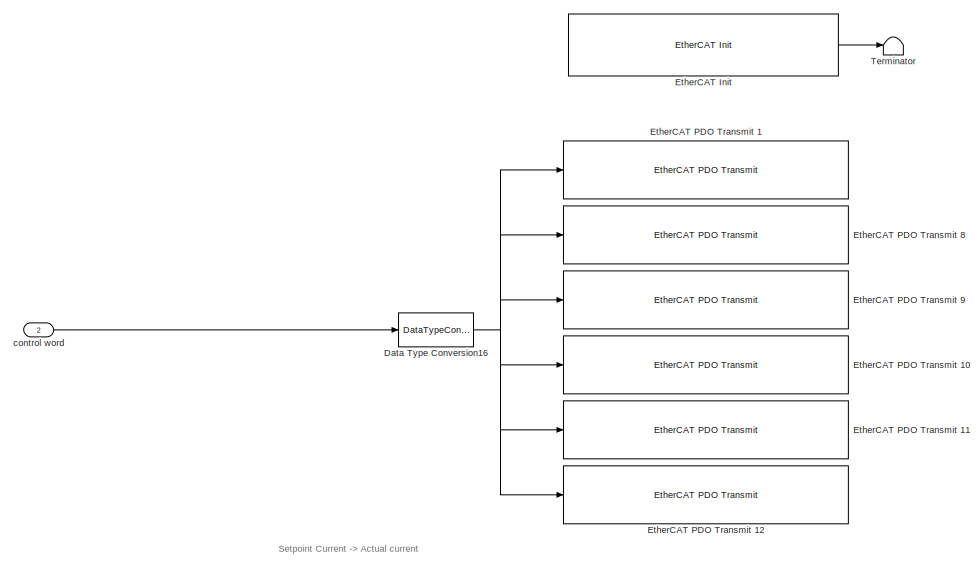
[diagram: root canvas - part 1/5, top left region]
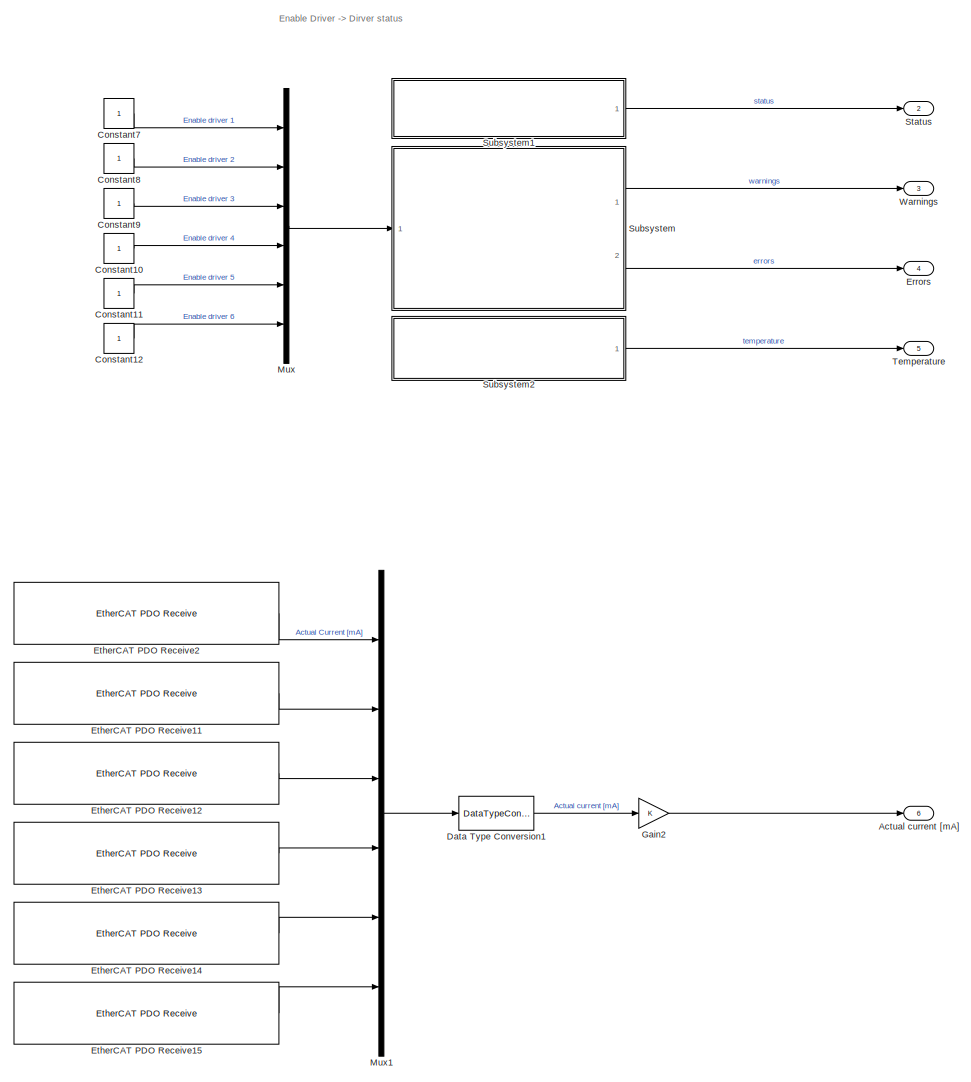
[diagram: root canvas - part 2/5, middle right region]
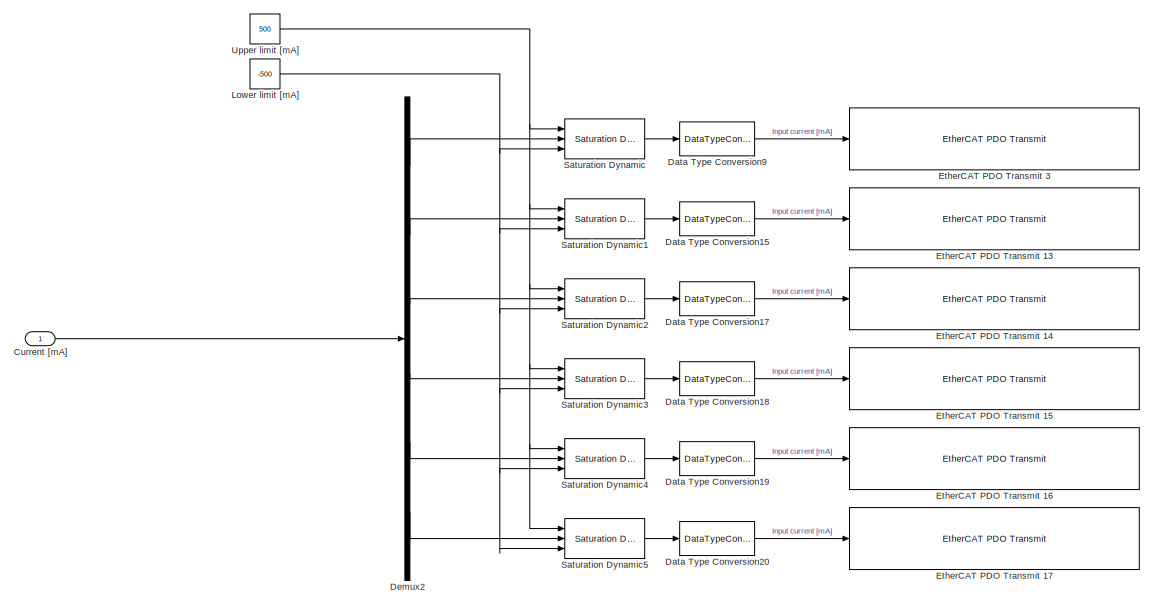
[diagram: root canvas - part 3/5, middle left region]
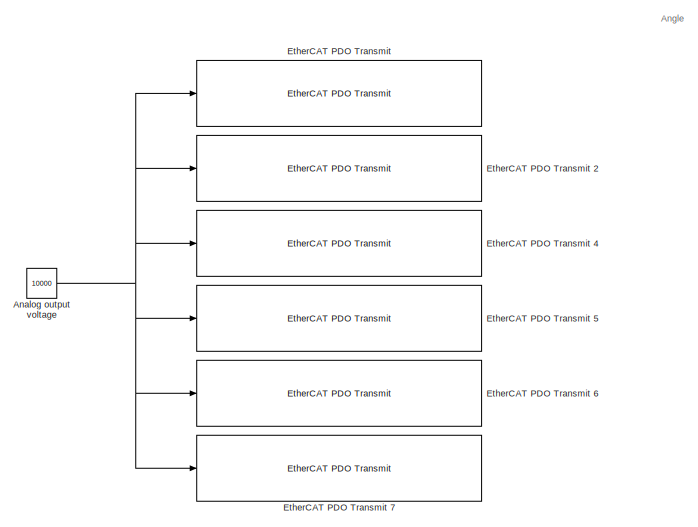
[diagram: root canvas - part 4/5, bottom center region]
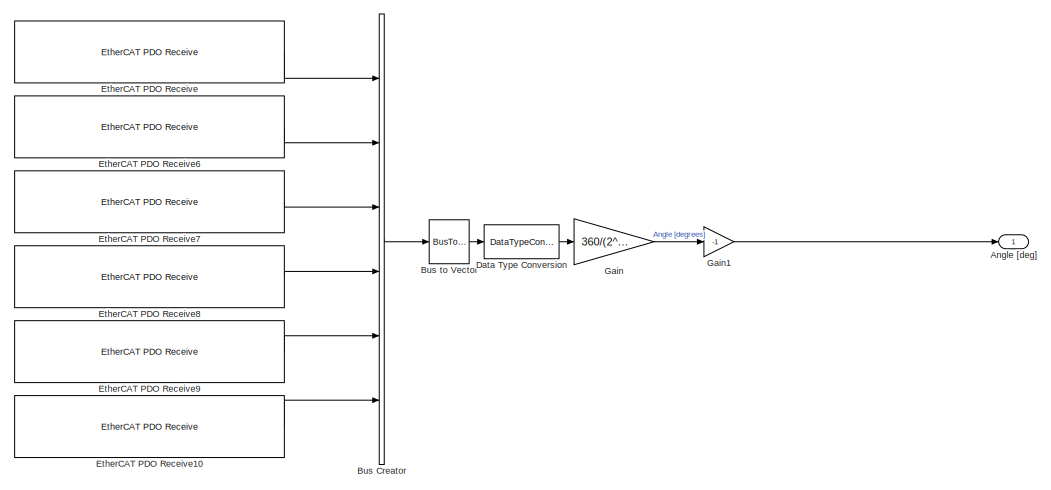
[diagram: root canvas - part 5/5, bottom right region]
MODEL slx_ce44946f2a41
KIND model
CONFIG AbsTol = auto
CONFIG EnableMultiTasking = on
CONFIG FixedStep = ts
CONFIG MaxStep = auto
CONFIG MinStep = auto
CONFIG RelTol = 1e-3
CONFIG SampleTimeConstraint = Unconstrained
CONFIG Solver = FixedStepAuto
CONFIG SolverName = FixedStepAuto
CONFIG StartTime = 0.0
CONFIG StopTime = inf
BLOCK [Outport] Actual current [mA]
  IconDisplay = Port number
  Port = 6
BLOCK [Constant] Analog output voltage
  OutDataTypeStr = int16
  SampleTime = -1
  Value = 10000
BLOCK [Outport] Angle [deg]
  IconDisplay = Port number
BLOCK [BusCreator] Bus Creator
  DisplayOption = bar
  InheritFromInputs = on
  Inputs = 6
  Ports = [6, 1]
BLOCK [BusToVector] Bus to Vector
BLOCK [Constant] Constant10
  OutDataTypeStr = int32
  SampleTime = 1
BLOCK [Constant] Constant11
  OutDataTypeStr = int32
  SampleTime = 1
BLOCK [Constant] Constant12
  OutDataTypeStr = int32
  SampleTime = 1
BLOCK [Constant] Constant7
  OutDataTypeStr = int32
  SampleTime = 1
BLOCK [Constant] Constant8
  OutDataTypeStr = int32
  SampleTime = 1
BLOCK [Constant] Constant9
  OutDataTypeStr = int32
  SampleTime = 1
BLOCK [Inport] Current [mA]
  IconDisplay = Port number
BLOCK [DataTypeConversion] Data Type Conversion
  OutDataTypeStr = double
  RndMeth = Floor
  SaturateOnIntegerOverflow = off
BLOCK [DataTypeConversion] Data Type Conversion1
  OutDataTypeStr = double
  RndMeth = Floor
  SaturateOnIntegerOverflow = off
BLOCK [DataTypeConversion] Data Type Conversion15
  OutDataTypeStr = int32
  RndMeth = Floor
  SaturateOnIntegerOverflow = off
BLOCK [DataTypeConversion] Data Type Conversion16
  OutDataTypeStr = uint16
  RndMeth = Floor
  SaturateOnIntegerOverflow = off
BLOCK [DataTypeConversion] Data Type Conversion17
  OutDataTypeStr = int32
  RndMeth = Floor
  SaturateOnIntegerOverflow = off
BLOCK [DataTypeConversion] Data Type Conversion18
  OutDataTypeStr = int32
  RndMeth = Floor
  SaturateOnIntegerOverflow = off
BLOCK [DataTypeConversion] Data Type Conversion19
  OutDataTypeStr = int32
  RndMeth = Floor
  SaturateOnIntegerOverflow = off
BLOCK [DataTypeConversion] Data Type Conversion20
  OutDataTypeStr = int32
  RndMeth = Floor
  SaturateOnIntegerOverflow = off
BLOCK [DataTypeConversion] Data Type Conversion9
  OutDataTypeStr = int32
  RndMeth = Floor
  SaturateOnIntegerOverflow = off
BLOCK [Demux] Demux2
  DisplayOption = bar
  Outputs = 6
  Ports = [1, 6]
BLOCK [Outport] Errors
  IconDisplay = Port number
  Port = 4
BLOCK [Reference] EtherCAT Init   REF=xpcethercatlib/EtherCAT Init 
  Ports = [0, 1]
  Priority = 0
  SourceBlock = xpcethercatlib/EtherCAT Init
  SourceProductBaseCode = XP
  SourceProductName = Simulink Real-Time
  SourceType = xpcethercatinit
BLOCK [Reference] EtherCAT PDO Receive  REF=xpcethercatlib/EtherCAT PDO Receive
  Ports = [0, 1]
  Priority = 2
  SourceBlock = xpcethercatlib/EtherCAT PDO Receive
  SourceProductBaseCode = XP
  SourceProductName = Simulink Real-Time
  SourceType = xpcethercat_rx_var
BLOCK [Reference] EtherCAT PDO Receive10  REF=xpcethercatlib/EtherCAT PDO Receive
  Ports = [0, 1]
  Priority = 2
  SourceBlock = xpcethercatlib/EtherCAT PDO Receive
  SourceProductBaseCode = XP
  SourceProductName = Simulink Real-Time
  SourceType = xpcethercat_rx_var
BLOCK [Reference] EtherCAT PDO Receive11  REF=xpcethercatlib/EtherCAT PDO Receive
  Ports = [0, 1]
  Priority = 2
  SourceBlock = xpcethercatlib/EtherCAT PDO Receive
  SourceProductBaseCode = XP
  SourceProductName = Simulink Real-Time
  SourceType = xpcethercat_rx_var
BLOCK [Reference] EtherCAT PDO Receive12  REF=xpcethercatlib/EtherCAT PDO Receive
  Ports = [0, 1]
  Priority = 2
  SourceBlock = xpcethercatlib/EtherCAT PDO Receive
  SourceProductBaseCode = XP
  SourceProductName = Simulink Real-Time
  SourceType = xpcethercat_rx_var
BLOCK [Reference] EtherCAT PDO Receive13  REF=xpcethercatlib/EtherCAT PDO Receive
  Ports = [0, 1]
  Priority = 2
  SourceBlock = xpcethercatlib/EtherCAT PDO Receive
  SourceProductBaseCode = XP
  SourceProductName = Simulink Real-Time
  SourceType = xpcethercat_rx_var
BLOCK [Reference] EtherCAT PDO Receive14  REF=xpcethercatlib/EtherCAT PDO Receive
  Ports = [0, 1]
  Priority = 2
  SourceBlock = xpcethercatlib/EtherCAT PDO Receive
  SourceProductBaseCode = XP
  SourceProductName = Simulink Real-Time
  SourceType = xpcethercat_rx_var
BLOCK [Reference] EtherCAT PDO Receive15  REF=xpcethercatlib/EtherCAT PDO Receive
  Ports = [0, 1]
  Priority = 2
  SourceBlock = xpcethercatlib/EtherCAT PDO Receive
  SourceProductBaseCode = XP
  SourceProductName = Simulink Real-Time
  SourceType = xpcethercat_rx_var
BLOCK [Reference] EtherCAT PDO Receive2  REF=xpcethercatlib/EtherCAT PDO Receive
  Ports = [0, 1]
  Priority = 2
  SourceBlock = xpcethercatlib/EtherCAT PDO Receive
  SourceProductBaseCode = XP
  SourceProductName = Simulink Real-Time
  SourceType = xpcethercat_rx_var
BLOCK [Reference] EtherCAT PDO Receive6  REF=xpcethercatlib/EtherCAT PDO Receive
  Ports = [0, 1]
  Priority = 2
  SourceBlock = xpcethercatlib/EtherCAT PDO Receive
  SourceProductBaseCode = XP
  SourceProductName = Simulink Real-Time
  SourceType = xpcethercat_rx_var
BLOCK [Reference] EtherCAT PDO Receive7  REF=xpcethercatlib/EtherCAT PDO Receive
  Ports = [0, 1]
  Priority = 2
  SourceBlock = xpcethercatlib/EtherCAT PDO Receive
  SourceProductBaseCode = XP
  SourceProductName = Simulink Real-Time
  SourceType = xpcethercat_rx_var
BLOCK [Reference] EtherCAT PDO Receive8  REF=xpcethercatlib/EtherCAT PDO Receive
  Ports = [0, 1]
  Priority = 2
  SourceBlock = xpcethercatlib/EtherCAT PDO Receive
  SourceProductBaseCode = XP
  SourceProductName = Simulink Real-Time
  SourceType = xpcethercat_rx_var
BLOCK [Reference] EtherCAT PDO Receive9  REF=xpcethercatlib/EtherCAT PDO Receive
  Ports = [0, 1]
  Priority = 2
  SourceBlock = xpcethercatlib/EtherCAT PDO Receive
  SourceProductBaseCode = XP
  SourceProductName = Simulink Real-Time
  SourceType = xpcethercat_rx_var
BLOCK [Reference] EtherCAT PDO Transmit   REF=xpcethercatlib/EtherCAT PDO Transmit 
  Ports = [1]
  Priority = 3
  SourceBlock = xpcethercatlib/EtherCAT PDO Transmit
  SourceProductBaseCode = XP
  SourceProductName = Simulink Real-Time
  SourceType = xpcethercat_tx_var
BLOCK [Reference] EtherCAT PDO Transmit 1  REF=xpcethercatlib/EtherCAT PDO Transmit 
  Ports = [1]
  Priority = 3
  SourceBlock = xpcethercatlib/EtherCAT PDO Transmit
  SourceProductBaseCode = XP
  SourceProductName = Simulink Real-Time
  SourceType = xpcethercat_tx_var
BLOCK [Reference] EtherCAT PDO Transmit 10  REF=xpcethercatlib/EtherCAT PDO Transmit 
  Ports = [1]
  Priority = 3
  SourceBlock = xpcethercatlib/EtherCAT PDO Transmit
  SourceProductBaseCode = XP
  SourceProductName = Simulink Real-Time
  SourceType = xpcethercat_tx_var
BLOCK [Reference] EtherCAT PDO Transmit 11  REF=xpcethercatlib/EtherCAT PDO Transmit 
  Ports = [1]
  Priority = 3
  SourceBlock = xpcethercatlib/EtherCAT PDO Transmit
  SourceProductBaseCode = XP
  SourceProductName = Simulink Real-Time
  SourceType = xpcethercat_tx_var
BLOCK [Reference] EtherCAT PDO Transmit 12  REF=xpcethercatlib/EtherCAT PDO Transmit 
  Ports = [1]
  Priority = 3
  SourceBlock = xpcethercatlib/EtherCAT PDO Transmit
  SourceProductBaseCode = XP
  SourceProductName = Simulink Real-Time
  SourceType = xpcethercat_tx_var
BLOCK [Reference] EtherCAT PDO Transmit 13  REF=xpcethercatlib/EtherCAT PDO Transmit 
  Ports = [1]
  Priority = 3
  SourceBlock = xpcethercatlib/EtherCAT PDO Transmit
  SourceProductBaseCode = XP
  SourceProductName = Simulink Real-Time
  SourceType = xpcethercat_tx_var
BLOCK [Reference] EtherCAT PDO Transmit 14  REF=xpcethercatlib/EtherCAT PDO Transmit 
  Ports = [1]
  Priority = 3
  SourceBlock = xpcethercatlib/EtherCAT PDO Transmit
  SourceProductBaseCode = XP
  SourceProductName = Simulink Real-Time
  SourceType = xpcethercat_tx_var
BLOCK [Reference] EtherCAT PDO Transmit 15  REF=xpcethercatlib/EtherCAT PDO Transmit 
  Ports = [1]
  Priority = 3
  SourceBlock = xpcethercatlib/EtherCAT PDO Transmit
  SourceProductBaseCode = XP
  SourceProductName = Simulink Real-Time
  SourceType = xpcethercat_tx_var
BLOCK [Reference] EtherCAT PDO Transmit 16  REF=xpcethercatlib/EtherCAT PDO Transmit 
  Ports = [1]
  Priority = 3
  SourceBlock = xpcethercatlib/EtherCAT PDO Transmit
  SourceProductBaseCode = XP
  SourceProductName = Simulink Real-Time
  SourceType = xpcethercat_tx_var
BLOCK [Reference] EtherCAT PDO Transmit 17  REF=xpcethercatlib/EtherCAT PDO Transmit 
  Ports = [1]
  Priority = 3
  SourceBlock = xpcethercatlib/EtherCAT PDO Transmit
  SourceProductBaseCode = XP
  SourceProductName = Simulink Real-Time
  SourceType = xpcethercat_tx_var
BLOCK [Reference] EtherCAT PDO Transmit 2  REF=xpcethercatlib/EtherCAT PDO Transmit 
  Ports = [1]
  Priority = 3
  SourceBlock = xpcethercatlib/EtherCAT PDO Transmit
  SourceProductBaseCode = XP
  SourceProductName = Simulink Real-Time
  SourceType = xpcethercat_tx_var
BLOCK [Reference] EtherCAT PDO Transmit 3  REF=xpcethercatlib/EtherCAT PDO Transmit 
  Ports = [1]
  Priority = 3
  SourceBlock = xpcethercatlib/EtherCAT PDO Transmit
  SourceProductBaseCode = XP
  SourceProductName = Simulink Real-Time
  SourceType = xpcethercat_tx_var
BLOCK [Reference] EtherCAT PDO Transmit 4  REF=xpcethercatlib/EtherCAT PDO Transmit 
  Ports = [1]
  Priority = 3
  SourceBlock = xpcethercatlib/EtherCAT PDO Transmit
  SourceProductBaseCode = XP
  SourceProductName = Simulink Real-Time
  SourceType = xpcethercat_tx_var
BLOCK [Reference] EtherCAT PDO Transmit 5  REF=xpcethercatlib/EtherCAT PDO Transmit 
  Ports = [1]
  Priority = 3
  SourceBlock = xpcethercatlib/EtherCAT PDO Transmit
  SourceProductBaseCode = XP
  SourceProductName = Simulink Real-Time
  SourceType = xpcethercat_tx_var
BLOCK [Reference] EtherCAT PDO Transmit 6  REF=xpcethercatlib/EtherCAT PDO Transmit 
  Ports = [1]
  Priority = 3
  SourceBlock = xpcethercatlib/EtherCAT PDO Transmit
  SourceProductBaseCode = XP
  SourceProductName = Simulink Real-Time
  SourceType = xpcethercat_tx_var
BLOCK [Reference] EtherCAT PDO Transmit 7  REF=xpcethercatlib/EtherCAT PDO Transmit 
  Ports = [1]
  Priority = 3
  SourceBlock = xpcethercatlib/EtherCAT PDO Transmit
  SourceProductBaseCode = XP
  SourceProductName = Simulink Real-Time
  SourceType = xpcethercat_tx_var
BLOCK [Reference] EtherCAT PDO Transmit 8  REF=xpcethercatlib/EtherCAT PDO Transmit 
  Ports = [1]
  Priority = 3
  SourceBlock = xpcethercatlib/EtherCAT PDO Transmit
  SourceProductBaseCode = XP
  SourceProductName = Simulink Real-Time
  SourceType = xpcethercat_tx_var
BLOCK [Reference] EtherCAT PDO Transmit 9  REF=xpcethercatlib/EtherCAT PDO Transmit 
  Ports = [1]
  Priority = 3
  SourceBlock = xpcethercatlib/EtherCAT PDO Transmit
  SourceProductBaseCode = XP
  SourceProductName = Simulink Real-Time
  SourceType = xpcethercat_tx_var
BLOCK [Gain] Gain
  Gain = 360/(2^32)
  OutDataTypeStr = Inherit: Inherit via internal rule
  ParamDataTypeStr = Inherit: Inherit via internal rule
  SaturateOnIntegerOverflow = off
BLOCK [Gain] Gain1
  Gain = -1
  OutDataTypeStr = Inherit: Inherit via internal rule
  ParamDataTypeStr = Inherit: Inherit via internal rule
  SaturateOnIntegerOverflow = off
BLOCK [Gain] Gain2
  OutDataTypeStr = Inherit: Inherit via internal rule
  ParamDataTypeStr = Inherit: Inherit via internal rule
  SaturateOnIntegerOverflow = off
BLOCK [Constant] Lower limit [mA]
  SampleTime = ts
  Value = -500
BLOCK [Mux] Mux
  DisplayOption = bar
  Inputs = 6
  Ports = [6, 1]
BLOCK [Mux] Mux1
  DisplayOption = bar
  Inputs = 6
  Ports = [6, 1]
BLOCK [Reference] Saturation Dynamic  REF=simulink/Discontinuities/Saturation
Dynamic
  Ports = [3, 1]
  SourceBlock = simulink/Discontinuities/Saturation\nDynamic
  SourceProductBaseCode = SL
  SourceProductName = Simulink
  SourceType = Saturation Dynamic
BLOCK [Reference] Saturation Dynamic1  REF=simulink/Discontinuities/Saturation
Dynamic
  Ports = [3, 1]
  SourceBlock = simulink/Discontinuities/Saturation\nDynamic
  SourceProductBaseCode = SL
  SourceProductName = Simulink
  SourceType = Saturation Dynamic
BLOCK [Reference] Saturation Dynamic2  REF=simulink/Discontinuities/Saturation
Dynamic
  Ports = [3, 1]
  SourceBlock = simulink/Discontinuities/Saturation\nDynamic
  SourceProductBaseCode = SL
  SourceProductName = Simulink
  SourceType = Saturation Dynamic
BLOCK [Reference] Saturation Dynamic3  REF=simulink/Discontinuities/Saturation
Dynamic
  Ports = [3, 1]
  SourceBlock = simulink/Discontinuities/Saturation\nDynamic
  SourceProductBaseCode = SL
  SourceProductName = Simulink
  SourceType = Saturation Dynamic
BLOCK [Reference] Saturation Dynamic4  REF=simulink/Discontinuities/Saturation
Dynamic
  Ports = [3, 1]
  SourceBlock = simulink/Discontinuities/Saturation\nDynamic
  SourceProductBaseCode = SL
  SourceProductName = Simulink
  SourceType = Saturation Dynamic
BLOCK [Reference] Saturation Dynamic5  REF=simulink/Discontinuities/Saturation
Dynamic
  Ports = [3, 1]
  SourceBlock = simulink/Discontinuities/Saturation\nDynamic
  SourceProductBaseCode = SL
  SourceProductName = Simulink
  SourceType = Saturation Dynamic
BLOCK [Outport] Status
  IconDisplay = Port number
  Port = 2
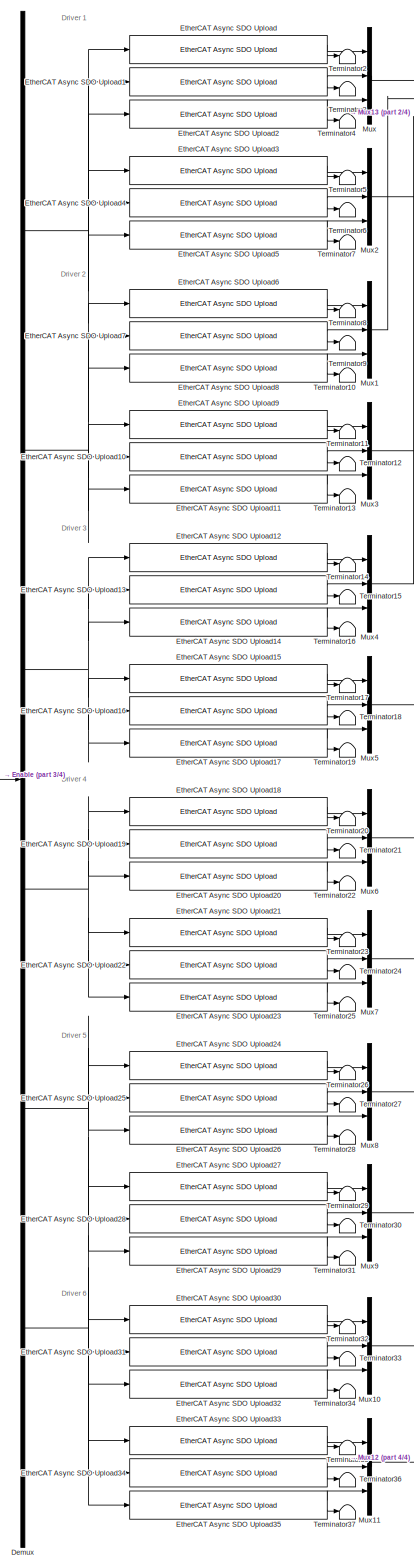
[diagram: Subsystem - part 1/4, left side, full height]
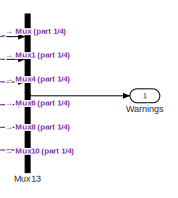
[diagram: Subsystem - part 2/4, top right region]
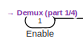
[diagram: Subsystem - part 3/4, middle left region]
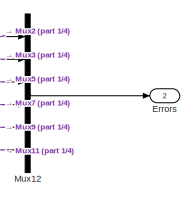
[diagram: Subsystem - part 4/4, bottom right region]
BLOCK [SubSystem] Subsystem
  Ports = [1, 2]
  RequestExecContextInheritance = off
BLOCK [Demux] Subsystem/Demux
  DisplayOption = bar
  Outputs = 6
  Ports = [1, 6]
BLOCK [Inport] Subsystem/Enable
  IconDisplay = Port number
BLOCK [Outport] Subsystem/Errors
  IconDisplay = Port number
  Port = 2
BLOCK [Reference] Subsystem/EtherCAT Async SDO Upload  REF=xpcethercatlib/EtherCAT Async SDO Upload
  Ports = [1, 2]
  SourceBlock = xpcethercatlib/EtherCAT Async SDO Upload
  SourceProductBaseCode = XP
  SourceProductName = Simulink Real-Time
  SourceType = ethercatasyncsdoupload
BLOCK [Reference] Subsystem/EtherCAT Async SDO Upload1  REF=xpcethercatlib/EtherCAT Async SDO Upload
  Ports = [1, 2]
  SourceBlock = xpcethercatlib/EtherCAT Async SDO Upload
  SourceProductBaseCode = XP
  SourceProductName = Simulink Real-Time
  SourceType = ethercatasyncsdoupload
BLOCK [Reference] Subsystem/EtherCAT Async SDO Upload10  REF=xpcethercatlib/EtherCAT Async SDO Upload
  Ports = [1, 2]
  SourceBlock = xpcethercatlib/EtherCAT Async SDO Upload
  SourceProductBaseCode = XP
  SourceProductName = Simulink Real-Time
  SourceType = ethercatasyncsdoupload
BLOCK [Reference] Subsystem/EtherCAT Async SDO Upload11  REF=xpcethercatlib/EtherCAT Async SDO Upload
  Ports = [1, 2]
  SourceBlock = xpcethercatlib/EtherCAT Async SDO Upload
  SourceProductBaseCode = XP
  SourceProductName = Simulink Real-Time
  SourceType = ethercatasyncsdoupload
BLOCK [Reference] Subsystem/EtherCAT Async SDO Upload12  REF=xpcethercatlib/EtherCAT Async SDO Upload
  Ports = [1, 2]
  SourceBlock = xpcethercatlib/EtherCAT Async SDO Upload
  SourceProductBaseCode = XP
  SourceProductName = Simulink Real-Time
  SourceType = ethercatasyncsdoupload
BLOCK [Reference] Subsystem/EtherCAT Async SDO Upload13  REF=xpcethercatlib/EtherCAT Async SDO Upload
  Ports = [1, 2]
  SourceBlock = xpcethercatlib/EtherCAT Async SDO Upload
  SourceProductBaseCode = XP
  SourceProductName = Simulink Real-Time
  SourceType = ethercatasyncsdoupload
BLOCK [Reference] Subsystem/EtherCAT Async SDO Upload14  REF=xpcethercatlib/EtherCAT Async SDO Upload
  Ports = [1, 2]
  SourceBlock = xpcethercatlib/EtherCAT Async SDO Upload
  SourceProductBaseCode = XP
  SourceProductName = Simulink Real-Time
  SourceType = ethercatasyncsdoupload
BLOCK [Reference] Subsystem/EtherCAT Async SDO Upload15  REF=xpcethercatlib/EtherCAT Async SDO Upload
  Ports = [1, 2]
  SourceBlock = xpcethercatlib/EtherCAT Async SDO Upload
  SourceProductBaseCode = XP
  SourceProductName = Simulink Real-Time
  SourceType = ethercatasyncsdoupload
BLOCK [Reference] Subsystem/EtherCAT Async SDO Upload16  REF=xpcethercatlib/EtherCAT Async SDO Upload
  Ports = [1, 2]
  SourceBlock = xpcethercatlib/EtherCAT Async SDO Upload
  SourceProductBaseCode = XP
  SourceProductName = Simulink Real-Time
  SourceType = ethercatasyncsdoupload
BLOCK [Reference] Subsystem/EtherCAT Async SDO Upload17  REF=xpcethercatlib/EtherCAT Async SDO Upload
  Ports = [1, 2]
  SourceBlock = xpcethercatlib/EtherCAT Async SDO Upload
  SourceProductBaseCode = XP
  SourceProductName = Simulink Real-Time
  SourceType = ethercatasyncsdoupload
BLOCK [Reference] Subsystem/EtherCAT Async SDO Upload18  REF=xpcethercatlib/EtherCAT Async SDO Upload
  Ports = [1, 2]
  SourceBlock = xpcethercatlib/EtherCAT Async SDO Upload
  SourceProductBaseCode = XP
  SourceProductName = Simulink Real-Time
  SourceType = ethercatasyncsdoupload
BLOCK [Reference] Subsystem/EtherCAT Async SDO Upload19  REF=xpcethercatlib/EtherCAT Async SDO Upload
  Ports = [1, 2]
  SourceBlock = xpcethercatlib/EtherCAT Async SDO Upload
  SourceProductBaseCode = XP
  SourceProductName = Simulink Real-Time
  SourceType = ethercatasyncsdoupload
BLOCK [Reference] Subsystem/EtherCAT Async SDO Upload2  REF=xpcethercatlib/EtherCAT Async SDO Upload
  Ports = [1, 2]
  SourceBlock = xpcethercatlib/EtherCAT Async SDO Upload
  SourceProductBaseCode = XP
  SourceProductName = Simulink Real-Time
  SourceType = ethercatasyncsdoupload
BLOCK [Reference] Subsystem/EtherCAT Async SDO Upload20  REF=xpcethercatlib/EtherCAT Async SDO Upload
  Ports = [1, 2]
  SourceBlock = xpcethercatlib/EtherCAT Async SDO Upload
  SourceProductBaseCode = XP
  SourceProductName = Simulink Real-Time
  SourceType = ethercatasyncsdoupload
BLOCK [Reference] Subsystem/EtherCAT Async SDO Upload21  REF=xpcethercatlib/EtherCAT Async SDO Upload
  Ports = [1, 2]
  SourceBlock = xpcethercatlib/EtherCAT Async SDO Upload
  SourceProductBaseCode = XP
  SourceProductName = Simulink Real-Time
  SourceType = ethercatasyncsdoupload
BLOCK [Reference] Subsystem/EtherCAT Async SDO Upload22  REF=xpcethercatlib/EtherCAT Async SDO Upload
  Ports = [1, 2]
  SourceBlock = xpcethercatlib/EtherCAT Async SDO Upload
  SourceProductBaseCode = XP
  SourceProductName = Simulink Real-Time
  SourceType = ethercatasyncsdoupload
BLOCK [Reference] Subsystem/EtherCAT Async SDO Upload23  REF=xpcethercatlib/EtherCAT Async SDO Upload
  Ports = [1, 2]
  SourceBlock = xpcethercatlib/EtherCAT Async SDO Upload
  SourceProductBaseCode = XP
  SourceProductName = Simulink Real-Time
  SourceType = ethercatasyncsdoupload
BLOCK [Reference] Subsystem/EtherCAT Async SDO Upload24  REF=xpcethercatlib/EtherCAT Async SDO Upload
  Ports = [1, 2]
  SourceBlock = xpcethercatlib/EtherCAT Async SDO Upload
  SourceProductBaseCode = XP
  SourceProductName = Simulink Real-Time
  SourceType = ethercatasyncsdoupload
BLOCK [Reference] Subsystem/EtherCAT Async SDO Upload25  REF=xpcethercatlib/EtherCAT Async SDO Upload
  Ports = [1, 2]
  SourceBlock = xpcethercatlib/EtherCAT Async SDO Upload
  SourceProductBaseCode = XP
  SourceProductName = Simulink Real-Time
  SourceType = ethercatasyncsdoupload
BLOCK [Reference] Subsystem/EtherCAT Async SDO Upload26  REF=xpcethercatlib/EtherCAT Async SDO Upload
  Ports = [1, 2]
  SourceBlock = xpcethercatlib/EtherCAT Async SDO Upload
  SourceProductBaseCode = XP
  SourceProductName = Simulink Real-Time
  SourceType = ethercatasyncsdoupload
BLOCK [Reference] Subsystem/EtherCAT Async SDO Upload27  REF=xpcethercatlib/EtherCAT Async SDO Upload
  Ports = [1, 2]
  SourceBlock = xpcethercatlib/EtherCAT Async SDO Upload
  SourceProductBaseCode = XP
  SourceProductName = Simulink Real-Time
  SourceType = ethercatasyncsdoupload
BLOCK [Reference] Subsystem/EtherCAT Async SDO Upload28  REF=xpcethercatlib/EtherCAT Async SDO Upload
  Ports = [1, 2]
  SourceBlock = xpcethercatlib/EtherCAT Async SDO Upload
  SourceProductBaseCode = XP
  SourceProductName = Simulink Real-Time
  SourceType = ethercatasyncsdoupload
BLOCK [Reference] Subsystem/EtherCAT Async SDO Upload29  REF=xpcethercatlib/EtherCAT Async SDO Upload
  Ports = [1, 2]
  SourceBlock = xpcethercatlib/EtherCAT Async SDO Upload
  SourceProductBaseCode = XP
  SourceProductName = Simulink Real-Time
  SourceType = ethercatasyncsdoupload
BLOCK [Reference] Subsystem/EtherCAT Async SDO Upload3  REF=xpcethercatlib/EtherCAT Async SDO Upload
  Ports = [1, 2]
  SourceBlock = xpcethercatlib/EtherCAT Async SDO Upload
  SourceProductBaseCode = XP
  SourceProductName = Simulink Real-Time
  SourceType = ethercatasyncsdoupload
BLOCK [Reference] Subsystem/EtherCAT Async SDO Upload30  REF=xpcethercatlib/EtherCAT Async SDO Upload
  Ports = [1, 2]
  SourceBlock = xpcethercatlib/EtherCAT Async SDO Upload
  SourceProductBaseCode = XP
  SourceProductName = Simulink Real-Time
  SourceType = ethercatasyncsdoupload
BLOCK [Reference] Subsystem/EtherCAT Async SDO Upload31  REF=xpcethercatlib/EtherCAT Async SDO Upload
  Ports = [1, 2]
  SourceBlock = xpcethercatlib/EtherCAT Async SDO Upload
  SourceProductBaseCode = XP
  SourceProductName = Simulink Real-Time
  SourceType = ethercatasyncsdoupload
BLOCK [Reference] Subsystem/EtherCAT Async SDO Upload32  REF=xpcethercatlib/EtherCAT Async SDO Upload
  Ports = [1, 2]
  SourceBlock = xpcethercatlib/EtherCAT Async SDO Upload
  SourceProductBaseCode = XP
  SourceProductName = Simulink Real-Time
  SourceType = ethercatasyncsdoupload
BLOCK [Reference] Subsystem/EtherCAT Async SDO Upload33  REF=xpcethercatlib/EtherCAT Async SDO Upload
  Ports = [1, 2]
  SourceBlock = xpcethercatlib/EtherCAT Async SDO Upload
  SourceProductBaseCode = XP
  SourceProductName = Simulink Real-Time
  SourceType = ethercatasyncsdoupload
BLOCK [Reference] Subsystem/EtherCAT Async SDO Upload34  REF=xpcethercatlib/EtherCAT Async SDO Upload
  Ports = [1, 2]
  SourceBlock = xpcethercatlib/EtherCAT Async SDO Upload
  SourceProductBaseCode = XP
  SourceProductName = Simulink Real-Time
  SourceType = ethercatasyncsdoupload
BLOCK [Reference] Subsystem/EtherCAT Async SDO Upload35  REF=xpcethercatlib/EtherCAT Async SDO Upload
  Ports = [1, 2]
  SourceBlock = xpcethercatlib/EtherCAT Async SDO Upload
  SourceProductBaseCode = XP
  SourceProductName = Simulink Real-Time
  SourceType = ethercatasyncsdoupload
BLOCK [Reference] Subsystem/EtherCAT Async SDO Upload4  REF=xpcethercatlib/EtherCAT Async SDO Upload
  Ports = [1, 2]
  SourceBlock = xpcethercatlib/EtherCAT Async SDO Upload
  SourceProductBaseCode = XP
  SourceProductName = Simulink Real-Time
  SourceType = ethercatasyncsdoupload
BLOCK [Reference] Subsystem/EtherCAT Async SDO Upload5  REF=xpcethercatlib/EtherCAT Async SDO Upload
  Ports = [1, 2]
  SourceBlock = xpcethercatlib/EtherCAT Async SDO Upload
  SourceProductBaseCode = XP
  SourceProductName = Simulink Real-Time
  SourceType = ethercatasyncsdoupload
BLOCK [Reference] Subsystem/EtherCAT Async SDO Upload6  REF=xpcethercatlib/EtherCAT Async SDO Upload
  Ports = [1, 2]
  SourceBlock = xpcethercatlib/EtherCAT Async SDO Upload
  SourceProductBaseCode = XP
  SourceProductName = Simulink Real-Time
  SourceType = ethercatasyncsdoupload
BLOCK [Reference] Subsystem/EtherCAT Async SDO Upload7  REF=xpcethercatlib/EtherCAT Async SDO Upload
  Ports = [1, 2]
  SourceBlock = xpcethercatlib/EtherCAT Async SDO Upload
  SourceProductBaseCode = XP
  SourceProductName = Simulink Real-Time
  SourceType = ethercatasyncsdoupload
BLOCK [Reference] Subsystem/EtherCAT Async SDO Upload8  REF=xpcethercatlib/EtherCAT Async SDO Upload
  Ports = [1, 2]
  SourceBlock = xpcethercatlib/EtherCAT Async SDO Upload
  SourceProductBaseCode = XP
  SourceProductName = Simulink Real-Time
  SourceType = ethercatasyncsdoupload
BLOCK [Reference] Subsystem/EtherCAT Async SDO Upload9  REF=xpcethercatlib/EtherCAT Async SDO Upload
  Ports = [1, 2]
  SourceBlock = xpcethercatlib/EtherCAT Async SDO Upload
  SourceProductBaseCode = XP
  SourceProductName = Simulink Real-Time
  SourceType = ethercatasyncsdoupload
BLOCK [Mux] Subsystem/Mux
  DisplayOption = bar
  Inputs = 3
  Ports = [3, 1]
BLOCK [Mux] Subsystem/Mux1
  DisplayOption = bar
  Inputs = 3
  Ports = [3, 1]
BLOCK [Mux] Subsystem/Mux10
  DisplayOption = bar
  Inputs = 3
  Ports = [3, 1]
BLOCK [Mux] Subsystem/Mux11
  DisplayOption = bar
  Inputs = 3
  Ports = [3, 1]
BLOCK [Mux] Subsystem/Mux12
  DisplayOption = bar
  Inputs = 6
  Ports = [6, 1]
BLOCK [Mux] Subsystem/Mux13
  DisplayOption = bar
  Inputs = 6
  Ports = [6, 1]
BLOCK [Mux] Subsystem/Mux2
  DisplayOption = bar
  Inputs = 3
  Ports = [3, 1]
BLOCK [Mux] Subsystem/Mux3
  DisplayOption = bar
  Inputs = 3
  Ports = [3, 1]
BLOCK [Mux] Subsystem/Mux4
  DisplayOption = bar
  Inputs = 3
  Ports = [3, 1]
BLOCK [Mux] Subsystem/Mux5
  DisplayOption = bar
  Inputs = 3
  Ports = [3, 1]
BLOCK [Mux] Subsystem/Mux6
  DisplayOption = bar
  Inputs = 3
  Ports = [3, 1]
BLOCK [Mux] Subsystem/Mux7
  DisplayOption = bar
  Inputs = 3
  Ports = [3, 1]
BLOCK [Mux] Subsystem/Mux8
  DisplayOption = bar
  Inputs = 3
  Ports = [3, 1]
BLOCK [Mux] Subsystem/Mux9
  DisplayOption = bar
  Inputs = 3
  Ports = [3, 1]
BLOCK [Terminator] Subsystem/Terminator10
BLOCK [Terminator] Subsystem/Terminator11
BLOCK [Terminator] Subsystem/Terminator12
BLOCK [Terminator] Subsystem/Terminator13
BLOCK [Terminator] Subsystem/Terminator14
BLOCK [Terminator] Subsystem/Terminator15
BLOCK [Terminator] Subsystem/Terminator16
BLOCK [Terminator] Subsystem/Terminator17
BLOCK [Terminator] Subsystem/Terminator18
BLOCK [Terminator] Subsystem/Terminator19
BLOCK [Terminator] Subsystem/Terminator2
BLOCK [Terminator] Subsystem/Terminator20
BLOCK [Terminator] Subsystem/Terminator21
BLOCK [Terminator] Subsystem/Terminator22
BLOCK [Terminator] Subsystem/Terminator23
BLOCK [Terminator] Subsystem/Terminator24
BLOCK [Terminator] Subsystem/Terminator25
BLOCK [Terminator] Subsystem/Terminator26
BLOCK [Terminator] Subsystem/Terminator27
BLOCK [Terminator] Subsystem/Terminator28
BLOCK [Terminator] Subsystem/Terminator29
BLOCK [Terminator] Subsystem/Terminator3
BLOCK [Terminator] Subsystem/Terminator30
BLOCK [Terminator] Subsystem/Terminator31
BLOCK [Terminator] Subsystem/Terminator32
BLOCK [Terminator] Subsystem/Terminator33
BLOCK [Terminator] Subsystem/Terminator34
BLOCK [Terminator] Subsystem/Terminator35
BLOCK [Terminator] Subsystem/Terminator36
BLOCK [Terminator] Subsystem/Terminator37
BLOCK [Terminator] Subsystem/Terminator4
BLOCK [Terminator] Subsystem/Terminator5
BLOCK [Terminator] Subsystem/Terminator6
BLOCK [Terminator] Subsystem/Terminator7
BLOCK [Terminator] Subsystem/Terminator8
BLOCK [Terminator] Subsystem/Terminator9
BLOCK [Outport] Subsystem/Warnings
  IconDisplay = Port number
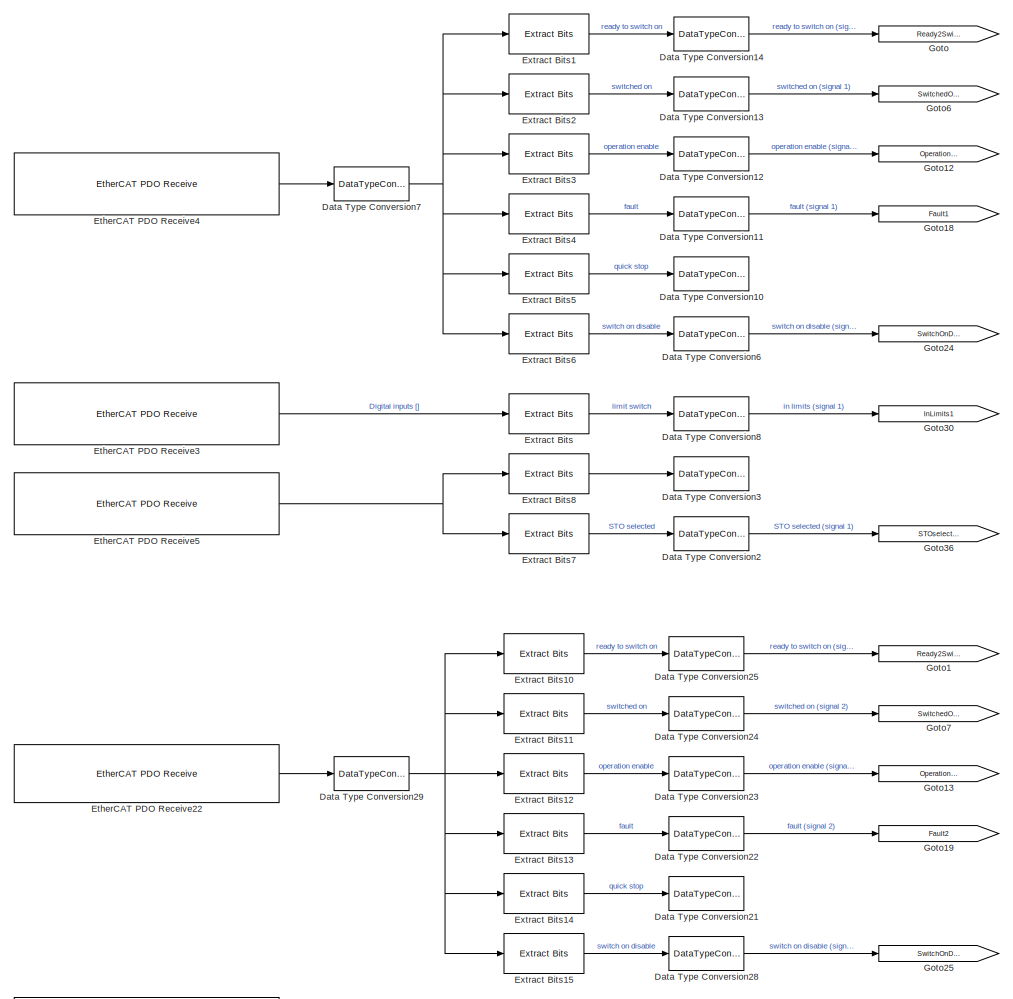
[diagram: Subsystem1 - part 1/6, top left region]
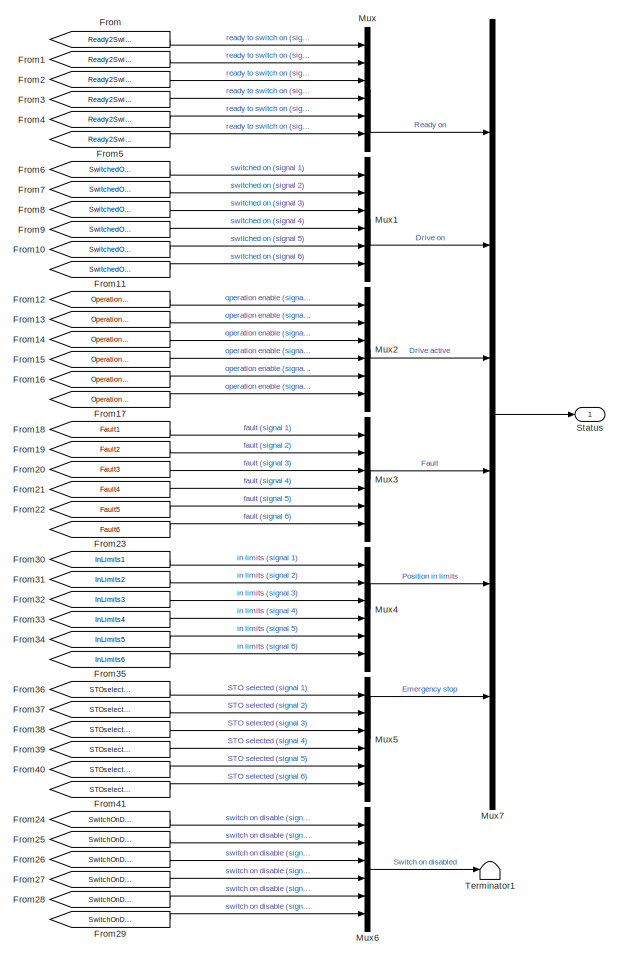
[diagram: Subsystem1 - part 2/6, top right region]
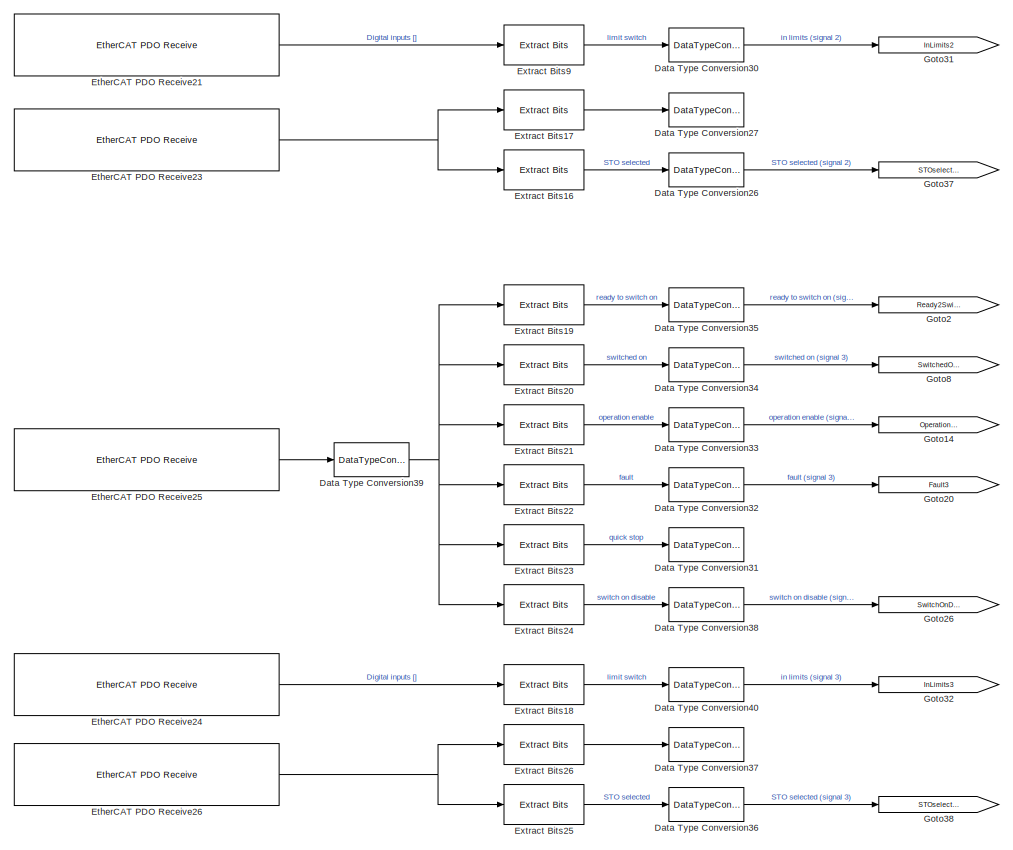
[diagram: Subsystem1 - part 3/6, middle left region]
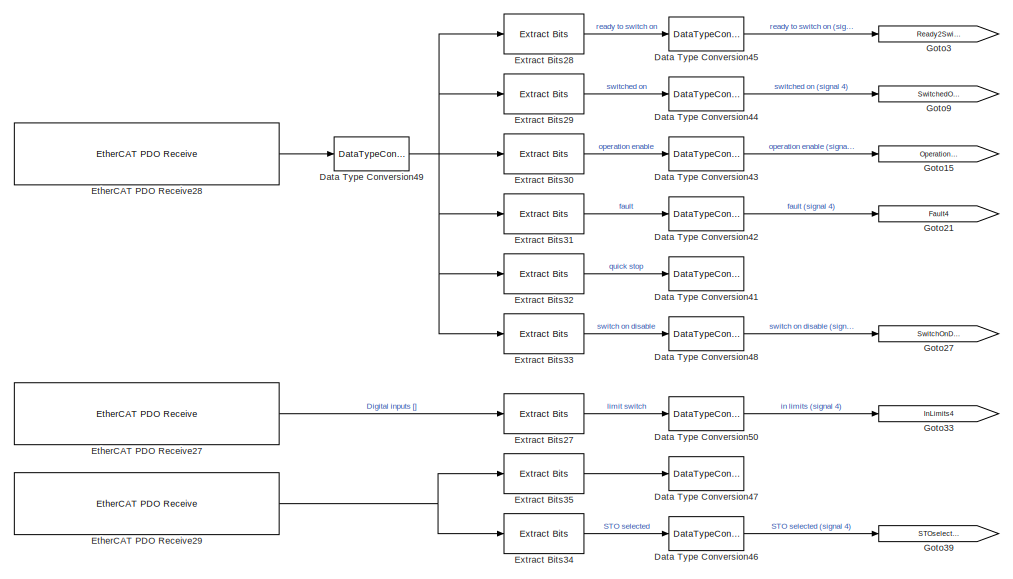
[diagram: Subsystem1 - part 4/6, middle left region]
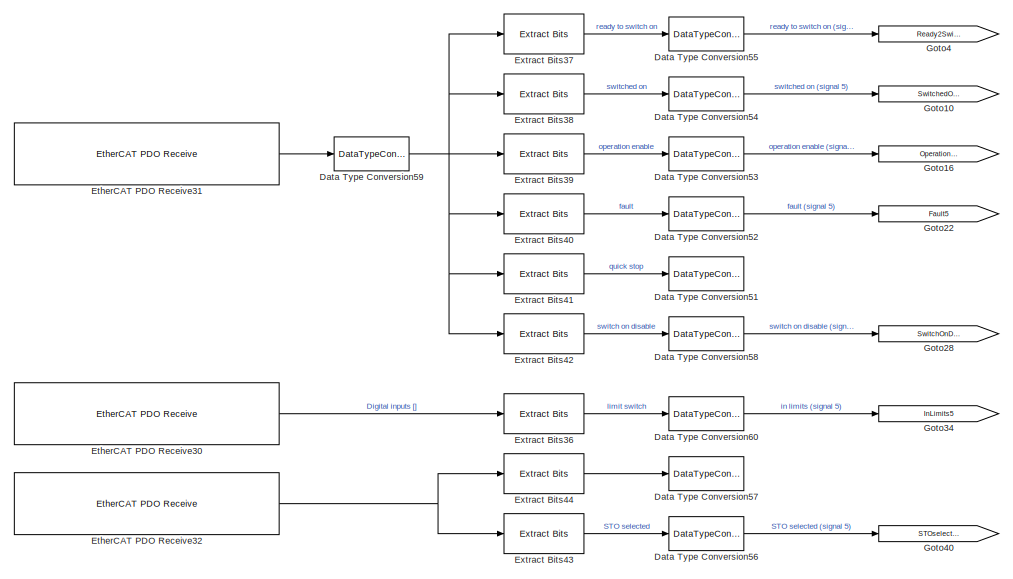
[diagram: Subsystem1 - part 5/6, bottom left region]
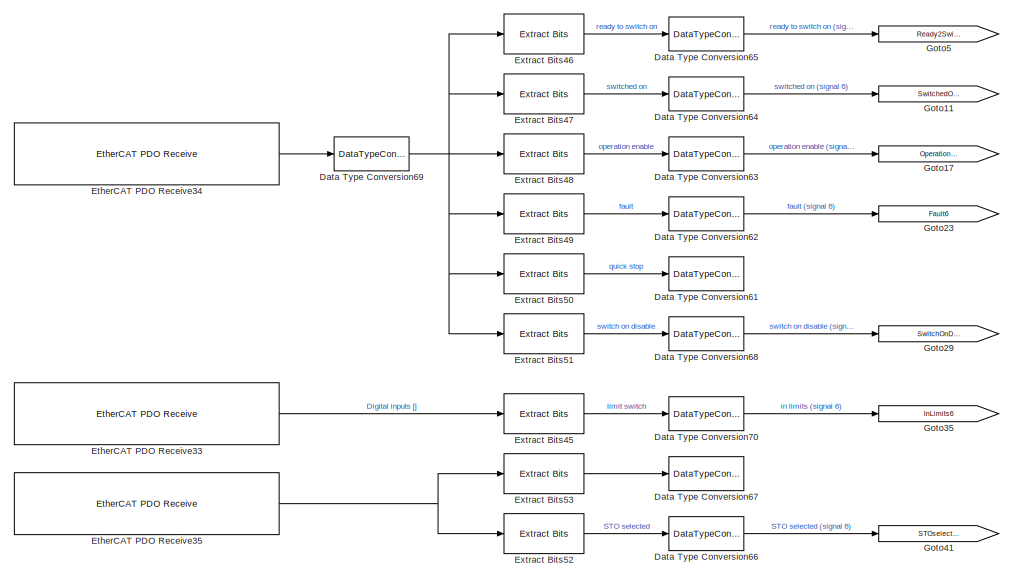
[diagram: Subsystem1 - part 6/6, bottom left region]
BLOCK [SubSystem] Subsystem1
  Ports = [0, 1]
  RequestExecContextInheritance = off
BLOCK [DataTypeConversion] Subsystem1/Data Type Conversion10
  Commented = on
  OutDataTypeStr = boolean
  RndMeth = Floor
  SaturateOnIntegerOverflow = off
BLOCK [DataTypeConversion] Subsystem1/Data Type Conversion11
  OutDataTypeStr = boolean
  RndMeth = Floor
  SaturateOnIntegerOverflow = off
BLOCK [DataTypeConversion] Subsystem1/Data Type Conversion12
  OutDataTypeStr = boolean
  RndMeth = Floor
  SaturateOnIntegerOverflow = off
BLOCK [DataTypeConversion] Subsystem1/Data Type Conversion13
  OutDataTypeStr = boolean
  RndMeth = Floor
  SaturateOnIntegerOverflow = off
BLOCK [DataTypeConversion] Subsystem1/Data Type Conversion14
  OutDataTypeStr = boolean
  RndMeth = Floor
  SaturateOnIntegerOverflow = off
BLOCK [DataTypeConversion] Subsystem1/Data Type Conversion2
  OutDataTypeStr = boolean
  RndMeth = Floor
  SaturateOnIntegerOverflow = off
BLOCK [DataTypeConversion] Subsystem1/Data Type Conversion21
  Commented = on
  OutDataTypeStr = boolean
  RndMeth = Floor
  SaturateOnIntegerOverflow = off
BLOCK [DataTypeConversion] Subsystem1/Data Type Conversion22
  OutDataTypeStr = boolean
  RndMeth = Floor
  SaturateOnIntegerOverflow = off
BLOCK [DataTypeConversion] Subsystem1/Data Type Conversion23
  OutDataTypeStr = boolean
  RndMeth = Floor
  SaturateOnIntegerOverflow = off
BLOCK [DataTypeConversion] Subsystem1/Data Type Conversion24
  OutDataTypeStr = boolean
  RndMeth = Floor
  SaturateOnIntegerOverflow = off
BLOCK [DataTypeConversion] Subsystem1/Data Type Conversion25
  OutDataTypeStr = boolean
  RndMeth = Floor
  SaturateOnIntegerOverflow = off
BLOCK [DataTypeConversion] Subsystem1/Data Type Conversion26
  OutDataTypeStr = boolean
  RndMeth = Floor
  SaturateOnIntegerOverflow = off
BLOCK [DataTypeConversion] Subsystem1/Data Type Conversion27
  Commented = on
  OutDataTypeStr = boolean
  RndMeth = Floor
  SaturateOnIntegerOverflow = off
BLOCK [DataTypeConversion] Subsystem1/Data Type Conversion28
  OutDataTypeStr = boolean
  RndMeth = Floor
  SaturateOnIntegerOverflow = off
BLOCK [DataTypeConversion] Subsystem1/Data Type Conversion29
  OutDataTypeStr = uint16
  RndMeth = Round
  SaturateOnIntegerOverflow = off
BLOCK [DataTypeConversion] Subsystem1/Data Type Conversion3
  Commented = on
  OutDataTypeStr = boolean
  RndMeth = Floor
  SaturateOnIntegerOverflow = off
BLOCK [DataTypeConversion] Subsystem1/Data Type Conversion30
  OutDataTypeStr = boolean
  RndMeth = Floor
  SaturateOnIntegerOverflow = off
BLOCK [DataTypeConversion] Subsystem1/Data Type Conversion31
  Commented = on
  OutDataTypeStr = boolean
  RndMeth = Floor
  SaturateOnIntegerOverflow = off
BLOCK [DataTypeConversion] Subsystem1/Data Type Conversion32
  OutDataTypeStr = boolean
  RndMeth = Floor
  SaturateOnIntegerOverflow = off
BLOCK [DataTypeConversion] Subsystem1/Data Type Conversion33
  OutDataTypeStr = boolean
  RndMeth = Floor
  SaturateOnIntegerOverflow = off
BLOCK [DataTypeConversion] Subsystem1/Data Type Conversion34
  OutDataTypeStr = boolean
  RndMeth = Floor
  SaturateOnIntegerOverflow = off
BLOCK [DataTypeConversion] Subsystem1/Data Type Conversion35
  OutDataTypeStr = boolean
  RndMeth = Floor
  SaturateOnIntegerOverflow = off
BLOCK [DataTypeConversion] Subsystem1/Data Type Conversion36
  OutDataTypeStr = boolean
  RndMeth = Floor
  SaturateOnIntegerOverflow = off
BLOCK [DataTypeConversion] Subsystem1/Data Type Conversion37
  Commented = on
  OutDataTypeStr = boolean
  RndMeth = Floor
  SaturateOnIntegerOverflow = off
BLOCK [DataTypeConversion] Subsystem1/Data Type Conversion38
  OutDataTypeStr = boolean
  RndMeth = Floor
  SaturateOnIntegerOverflow = off
BLOCK [DataTypeConversion] Subsystem1/Data Type Conversion39
  OutDataTypeStr = uint16
  RndMeth = Round
  SaturateOnIntegerOverflow = off
BLOCK [DataTypeConversion] Subsystem1/Data Type Conversion40
  OutDataTypeStr = boolean
  RndMeth = Floor
  SaturateOnIntegerOverflow = off
BLOCK [DataTypeConversion] Subsystem1/Data Type Conversion41
  Commented = on
  OutDataTypeStr = boolean
  RndMeth = Floor
  SaturateOnIntegerOverflow = off
BLOCK [DataTypeConversion] Subsystem1/Data Type Conversion42
  OutDataTypeStr = boolean
  RndMeth = Floor
  SaturateOnIntegerOverflow = off
BLOCK [DataTypeConversion] Subsystem1/Data Type Conversion43
  OutDataTypeStr = boolean
  RndMeth = Floor
  SaturateOnIntegerOverflow = off
BLOCK [DataTypeConversion] Subsystem1/Data Type Conversion44
  OutDataTypeStr = boolean
  RndMeth = Floor
  SaturateOnIntegerOverflow = off
BLOCK [DataTypeConversion] Subsystem1/Data Type Conversion45
  OutDataTypeStr = boolean
  RndMeth = Floor
  SaturateOnIntegerOverflow = off
BLOCK [DataTypeConversion] Subsystem1/Data Type Conversion46
  OutDataTypeStr = boolean
  RndMeth = Floor
  SaturateOnIntegerOverflow = off
BLOCK [DataTypeConversion] Subsystem1/Data Type Conversion47
  Commented = on
  OutDataTypeStr = boolean
  RndMeth = Floor
  SaturateOnIntegerOverflow = off
BLOCK [DataTypeConversion] Subsystem1/Data Type Conversion48
  OutDataTypeStr = boolean
  RndMeth = Floor
  SaturateOnIntegerOverflow = off
BLOCK [DataTypeConversion] Subsystem1/Data Type Conversion49
  OutDataTypeStr = uint16
  RndMeth = Round
  SaturateOnIntegerOverflow = off
BLOCK [DataTypeConversion] Subsystem1/Data Type Conversion50
  OutDataTypeStr = boolean
  RndMeth = Floor
  SaturateOnIntegerOverflow = off
BLOCK [DataTypeConversion] Subsystem1/Data Type Conversion51
  Commented = on
  OutDataTypeStr = boolean
  RndMeth = Floor
  SaturateOnIntegerOverflow = off
BLOCK [DataTypeConversion] Subsystem1/Data Type Conversion52
  OutDataTypeStr = boolean
  RndMeth = Floor
  SaturateOnIntegerOverflow = off
BLOCK [DataTypeConversion] Subsystem1/Data Type Conversion53
  OutDataTypeStr = boolean
  RndMeth = Floor
  SaturateOnIntegerOverflow = off
BLOCK [DataTypeConversion] Subsystem1/Data Type Conversion54
  OutDataTypeStr = boolean
  RndMeth = Floor
  SaturateOnIntegerOverflow = off
BLOCK [DataTypeConversion] Subsystem1/Data Type Conversion55
  OutDataTypeStr = boolean
  RndMeth = Floor
  SaturateOnIntegerOverflow = off
BLOCK [DataTypeConversion] Subsystem1/Data Type Conversion56
  OutDataTypeStr = boolean
  RndMeth = Floor
  SaturateOnIntegerOverflow = off
BLOCK [DataTypeConversion] Subsystem1/Data Type Conversion57
  Commented = on
  OutDataTypeStr = boolean
  RndMeth = Floor
  SaturateOnIntegerOverflow = off
BLOCK [DataTypeConversion] Subsystem1/Data Type Conversion58
  OutDataTypeStr = boolean
  RndMeth = Floor
  SaturateOnIntegerOverflow = off
BLOCK [DataTypeConversion] Subsystem1/Data Type Conversion59
  OutDataTypeStr = uint16
  RndMeth = Round
  SaturateOnIntegerOverflow = off
BLOCK [DataTypeConversion] Subsystem1/Data Type Conversion6
  OutDataTypeStr = boolean
  RndMeth = Floor
  SaturateOnIntegerOverflow = off
BLOCK [DataTypeConversion] Subsystem1/Data Type Conversion60
  OutDataTypeStr = boolean
  RndMeth = Floor
  SaturateOnIntegerOverflow = off
BLOCK [DataTypeConversion] Subsystem1/Data Type Conversion61
  Commented = on
  OutDataTypeStr = boolean
  RndMeth = Floor
  SaturateOnIntegerOverflow = off
BLOCK [DataTypeConversion] Subsystem1/Data Type Conversion62
  OutDataTypeStr = boolean
  RndMeth = Floor
  SaturateOnIntegerOverflow = off
BLOCK [DataTypeConversion] Subsystem1/Data Type Conversion63
  OutDataTypeStr = boolean
  RndMeth = Floor
  SaturateOnIntegerOverflow = off
BLOCK [DataTypeConversion] Subsystem1/Data Type Conversion64
  OutDataTypeStr = boolean
  RndMeth = Floor
  SaturateOnIntegerOverflow = off
BLOCK [DataTypeConversion] Subsystem1/Data Type Conversion65
  OutDataTypeStr = boolean
  RndMeth = Floor
  SaturateOnIntegerOverflow = off
BLOCK [DataTypeConversion] Subsystem1/Data Type Conversion66
  OutDataTypeStr = boolean
  RndMeth = Floor
  SaturateOnIntegerOverflow = off
BLOCK [DataTypeConversion] Subsystem1/Data Type Conversion67
  Commented = on
  OutDataTypeStr = boolean
  RndMeth = Floor
  SaturateOnIntegerOverflow = off
BLOCK [DataTypeConversion] Subsystem1/Data Type Conversion68
  OutDataTypeStr = boolean
  RndMeth = Floor
  SaturateOnIntegerOverflow = off
BLOCK [DataTypeConversion] Subsystem1/Data Type Conversion69
  OutDataTypeStr = uint16
  RndMeth = Round
  SaturateOnIntegerOverflow = off
BLOCK [DataTypeConversion] Subsystem1/Data Type Conversion7
  OutDataTypeStr = uint16
  RndMeth = Round
  SaturateOnIntegerOverflow = off
BLOCK [DataTypeConversion] Subsystem1/Data Type Conversion70
  OutDataTypeStr = boolean
  RndMeth = Floor
  SaturateOnIntegerOverflow = off
BLOCK [DataTypeConversion] Subsystem1/Data Type Conversion8
  OutDataTypeStr = boolean
  RndMeth = Floor
  SaturateOnIntegerOverflow = off
BLOCK [Reference] Subsystem1/EtherCAT PDO Receive21  REF=xpcethercatlib/EtherCAT PDO Receive
  Ports = [0, 1]
  Priority = 2
  SourceBlock = xpcethercatlib/EtherCAT PDO Receive
  SourceProductBaseCode = XP
  SourceProductName = Simulink Real-Time
  SourceType = xpcethercat_rx_var
BLOCK [Reference] Subsystem1/EtherCAT PDO Receive22  REF=xpcethercatlib/EtherCAT PDO Receive
  Ports = [0, 1]
  Priority = 2
  SourceBlock = xpcethercatlib/EtherCAT PDO Receive
  SourceProductBaseCode = XP
  SourceProductName = Simulink Real-Time
  SourceType = xpcethercat_rx_var
BLOCK [Reference] Subsystem1/EtherCAT PDO Receive23  REF=xpcethercatlib/EtherCAT PDO Receive
  Ports = [0, 1]
  Priority = 2
  SourceBlock = xpcethercatlib/EtherCAT PDO Receive
  SourceProductBaseCode = XP
  SourceProductName = Simulink Real-Time
  SourceType = xpcethercat_rx_var
BLOCK [Reference] Subsystem1/EtherCAT PDO Receive24  REF=xpcethercatlib/EtherCAT PDO Receive
  Ports = [0, 1]
  Priority = 2
  SourceBlock = xpcethercatlib/EtherCAT PDO Receive
  SourceProductBaseCode = XP
  SourceProductName = Simulink Real-Time
  SourceType = xpcethercat_rx_var
BLOCK [Reference] Subsystem1/EtherCAT PDO Receive25  REF=xpcethercatlib/EtherCAT PDO Receive
  Ports = [0, 1]
  Priority = 2
  SourceBlock = xpcethercatlib/EtherCAT PDO Receive
  SourceProductBaseCode = XP
  SourceProductName = Simulink Real-Time
  SourceType = xpcethercat_rx_var
BLOCK [Reference] Subsystem1/EtherCAT PDO Receive26  REF=xpcethercatlib/EtherCAT PDO Receive
  Ports = [0, 1]
  Priority = 2
  SourceBlock = xpcethercatlib/EtherCAT PDO Receive
  SourceProductBaseCode = XP
  SourceProductName = Simulink Real-Time
  SourceType = xpcethercat_rx_var
BLOCK [Reference] Subsystem1/EtherCAT PDO Receive27  REF=xpcethercatlib/EtherCAT PDO Receive
  Ports = [0, 1]
  Priority = 2
  SourceBlock = xpcethercatlib/EtherCAT PDO Receive
  SourceProductBaseCode = XP
  SourceProductName = Simulink Real-Time
  SourceType = xpcethercat_rx_var
BLOCK [Reference] Subsystem1/EtherCAT PDO Receive28  REF=xpcethercatlib/EtherCAT PDO Receive
  Ports = [0, 1]
  Priority = 2
  SourceBlock = xpcethercatlib/EtherCAT PDO Receive
  SourceProductBaseCode = XP
  SourceProductName = Simulink Real-Time
  SourceType = xpcethercat_rx_var
BLOCK [Reference] Subsystem1/EtherCAT PDO Receive29  REF=xpcethercatlib/EtherCAT PDO Receive
  Ports = [0, 1]
  Priority = 2
  SourceBlock = xpcethercatlib/EtherCAT PDO Receive
  SourceProductBaseCode = XP
  SourceProductName = Simulink Real-Time
  SourceType = xpcethercat_rx_var
BLOCK [Reference] Subsystem1/EtherCAT PDO Receive3  REF=xpcethercatlib/EtherCAT PDO Receive
  Ports = [0, 1]
  Priority = 2
  SourceBlock = xpcethercatlib/EtherCAT PDO Receive
  SourceProductBaseCode = XP
  SourceProductName = Simulink Real-Time
  SourceType = xpcethercat_rx_var
BLOCK [Reference] Subsystem1/EtherCAT PDO Receive30  REF=xpcethercatlib/EtherCAT PDO Receive
  Ports = [0, 1]
  Priority = 2
  SourceBlock = xpcethercatlib/EtherCAT PDO Receive
  SourceProductBaseCode = XP
  SourceProductName = Simulink Real-Time
  SourceType = xpcethercat_rx_var
BLOCK [Reference] Subsystem1/EtherCAT PDO Receive31  REF=xpcethercatlib/EtherCAT PDO Receive
  Ports = [0, 1]
  Priority = 2
  SourceBlock = xpcethercatlib/EtherCAT PDO Receive
  SourceProductBaseCode = XP
  SourceProductName = Simulink Real-Time
  SourceType = xpcethercat_rx_var
BLOCK [Reference] Subsystem1/EtherCAT PDO Receive32  REF=xpcethercatlib/EtherCAT PDO Receive
  Ports = [0, 1]
  Priority = 2
  SourceBlock = xpcethercatlib/EtherCAT PDO Receive
  SourceProductBaseCode = XP
  SourceProductName = Simulink Real-Time
  SourceType = xpcethercat_rx_var
BLOCK [Reference] Subsystem1/EtherCAT PDO Receive33  REF=xpcethercatlib/EtherCAT PDO Receive
  Ports = [0, 1]
  Priority = 2
  SourceBlock = xpcethercatlib/EtherCAT PDO Receive
  SourceProductBaseCode = XP
  SourceProductName = Simulink Real-Time
  SourceType = xpcethercat_rx_var
BLOCK [Reference] Subsystem1/EtherCAT PDO Receive34  REF=xpcethercatlib/EtherCAT PDO Receive
  Ports = [0, 1]
  Priority = 2
  SourceBlock = xpcethercatlib/EtherCAT PDO Receive
  SourceProductBaseCode = XP
  SourceProductName = Simulink Real-Time
  SourceType = xpcethercat_rx_var
BLOCK [Reference] Subsystem1/EtherCAT PDO Receive35  REF=xpcethercatlib/EtherCAT PDO Receive
  Ports = [0, 1]
  Priority = 2
  SourceBlock = xpcethercatlib/EtherCAT PDO Receive
  SourceProductBaseCode = XP
  SourceProductName = Simulink Real-Time
  SourceType = xpcethercat_rx_var
BLOCK [Reference] Subsystem1/EtherCAT PDO Receive4  REF=xpcethercatlib/EtherCAT PDO Receive
  Ports = [0, 1]
  Priority = 2
  SourceBlock = xpcethercatlib/EtherCAT PDO Receive
  SourceProductBaseCode = XP
  SourceProductName = Simulink Real-Time
  SourceType = xpcethercat_rx_var
BLOCK [Reference] Subsystem1/EtherCAT PDO Receive5  REF=xpcethercatlib/EtherCAT PDO Receive
  Ports = [0, 1]
  Priority = 2
  SourceBlock = xpcethercatlib/EtherCAT PDO Receive
  SourceProductBaseCode = XP
  SourceProductName = Simulink Real-Time
  SourceType = xpcethercat_rx_var
BLOCK [Reference] Subsystem1/Extract Bits  REF=simulink/Logic and Bit
Operations/Extract Bits
  Ports = [1, 1]
  SourceBlock = simulink/Logic and Bit\nOperations/Extract Bits
  SourceProductBaseCode = SL
  SourceProductName = Simulink
  SourceType = Extract Bits
BLOCK [Reference] Subsystem1/Extract Bits1  REF=simulink/Logic and Bit
Operations/Extract Bits
  Ports = [1, 1]
  SourceBlock = simulink/Logic and Bit\nOperations/Extract Bits
  SourceProductBaseCode = SL
  SourceProductName = Simulink
  SourceType = Extract Bits
BLOCK [Reference] Subsystem1/Extract Bits10  REF=simulink/Logic and Bit
Operations/Extract Bits
  Ports = [1, 1]
  SourceBlock = simulink/Logic and Bit\nOperations/Extract Bits
  SourceProductBaseCode = SL
  SourceProductName = Simulink
  SourceType = Extract Bits
BLOCK [Reference] Subsystem1/Extract Bits11  REF=simulink/Logic and Bit
Operations/Extract Bits
  Ports = [1, 1]
  SourceBlock = simulink/Logic and Bit\nOperations/Extract Bits
  SourceProductBaseCode = SL
  SourceProductName = Simulink
  SourceType = Extract Bits
BLOCK [Reference] Subsystem1/Extract Bits12  REF=simulink/Logic and Bit
Operations/Extract Bits
  Ports = [1, 1]
  SourceBlock = simulink/Logic and Bit\nOperations/Extract Bits
  SourceProductBaseCode = SL
  SourceProductName = Simulink
  SourceType = Extract Bits
BLOCK [Reference] Subsystem1/Extract Bits13  REF=simulink/Logic and Bit
Operations/Extract Bits
  Ports = [1, 1]
  SourceBlock = simulink/Logic and Bit\nOperations/Extract Bits
  SourceProductBaseCode = SL
  SourceProductName = Simulink
  SourceType = Extract Bits
BLOCK [Reference] Subsystem1/Extract Bits14  REF=simulink/Logic and Bit
Operations/Extract Bits
  Commented = on
  Ports = [1, 1]
  SourceBlock = simulink/Logic and Bit\nOperations/Extract Bits
  SourceProductBaseCode = SL
  SourceProductName = Simulink
  SourceType = Extract Bits
BLOCK [Reference] Subsystem1/Extract Bits15  REF=simulink/Logic and Bit
Operations/Extract Bits
  Ports = [1, 1]
  SourceBlock = simulink/Logic and Bit\nOperations/Extract Bits
  SourceProductBaseCode = SL
  SourceProductName = Simulink
  SourceType = Extract Bits
BLOCK [Reference] Subsystem1/Extract Bits16  REF=simulink/Logic and Bit
Operations/Extract Bits
  Ports = [1, 1]
  SourceBlock = simulink/Logic and Bit\nOperations/Extract Bits
  SourceProductBaseCode = SL
  SourceProductName = Simulink
  SourceType = Extract Bits
BLOCK [Reference] Subsystem1/Extract Bits17  REF=simulink/Logic and Bit
Operations/Extract Bits
  Commented = on
  Ports = [1, 1]
  SourceBlock = simulink/Logic and Bit\nOperations/Extract Bits
  SourceProductBaseCode = SL
  SourceProductName = Simulink
  SourceType = Extract Bits
BLOCK [Reference] Subsystem1/Extract Bits18  REF=simulink/Logic and Bit
Operations/Extract Bits
  Ports = [1, 1]
  SourceBlock = simulink/Logic and Bit\nOperations/Extract Bits
  SourceProductBaseCode = SL
  SourceProductName = Simulink
  SourceType = Extract Bits
BLOCK [Reference] Subsystem1/Extract Bits19  REF=simulink/Logic and Bit
Operations/Extract Bits
  Ports = [1, 1]
  SourceBlock = simulink/Logic and Bit\nOperations/Extract Bits
  SourceProductBaseCode = SL
  SourceProductName = Simulink
  SourceType = Extract Bits
BLOCK [Reference] Subsystem1/Extract Bits2  REF=simulink/Logic and Bit
Operations/Extract Bits
  Ports = [1, 1]
  SourceBlock = simulink/Logic and Bit\nOperations/Extract Bits
  SourceProductBaseCode = SL
  SourceProductName = Simulink
  SourceType = Extract Bits
BLOCK [Reference] Subsystem1/Extract Bits20  REF=simulink/Logic and Bit
Operations/Extract Bits
  Ports = [1, 1]
  SourceBlock = simulink/Logic and Bit\nOperations/Extract Bits
  SourceProductBaseCode = SL
  SourceProductName = Simulink
  SourceType = Extract Bits
BLOCK [Reference] Subsystem1/Extract Bits21  REF=simulink/Logic and Bit
Operations/Extract Bits
  Ports = [1, 1]
  SourceBlock = simulink/Logic and Bit\nOperations/Extract Bits
  SourceProductBaseCode = SL
  SourceProductName = Simulink
  SourceType = Extract Bits
BLOCK [Reference] Subsystem1/Extract Bits22  REF=simulink/Logic and Bit
Operations/Extract Bits
  Ports = [1, 1]
  SourceBlock = simulink/Logic and Bit\nOperations/Extract Bits
  SourceProductBaseCode = SL
  SourceProductName = Simulink
  SourceType = Extract Bits
BLOCK [Reference] Subsystem1/Extract Bits23  REF=simulink/Logic and Bit
Operations/Extract Bits
  Commented = on
  Ports = [1, 1]
  SourceBlock = simulink/Logic and Bit\nOperations/Extract Bits
  SourceProductBaseCode = SL
  SourceProductName = Simulink
  SourceType = Extract Bits
BLOCK [Reference] Subsystem1/Extract Bits24  REF=simulink/Logic and Bit
Operations/Extract Bits
  Ports = [1, 1]
  SourceBlock = simulink/Logic and Bit\nOperations/Extract Bits
  SourceProductBaseCode = SL
  SourceProductName = Simulink
  SourceType = Extract Bits
BLOCK [Reference] Subsystem1/Extract Bits25  REF=simulink/Logic and Bit
Operations/Extract Bits
  Ports = [1, 1]
  SourceBlock = simulink/Logic and Bit\nOperations/Extract Bits
  SourceProductBaseCode = SL
  SourceProductName = Simulink
  SourceType = Extract Bits
BLOCK [Reference] Subsystem1/Extract Bits26  REF=simulink/Logic and Bit
Operations/Extract Bits
  Commented = on
  Ports = [1, 1]
  SourceBlock = simulink/Logic and Bit\nOperations/Extract Bits
  SourceProductBaseCode = SL
  SourceProductName = Simulink
  SourceType = Extract Bits
BLOCK [Reference] Subsystem1/Extract Bits27  REF=simulink/Logic and Bit
Operations/Extract Bits
  Ports = [1, 1]
  SourceBlock = simulink/Logic and Bit\nOperations/Extract Bits
  SourceProductBaseCode = SL
  SourceProductName = Simulink
  SourceType = Extract Bits
BLOCK [Reference] Subsystem1/Extract Bits28  REF=simulink/Logic and Bit
Operations/Extract Bits
  Ports = [1, 1]
  SourceBlock = simulink/Logic and Bit\nOperations/Extract Bits
  SourceProductBaseCode = SL
  SourceProductName = Simulink
  SourceType = Extract Bits
BLOCK [Reference] Subsystem1/Extract Bits29  REF=simulink/Logic and Bit
Operations/Extract Bits
  Ports = [1, 1]
  SourceBlock = simulink/Logic and Bit\nOperations/Extract Bits
  SourceProductBaseCode = SL
  SourceProductName = Simulink
  SourceType = Extract Bits
BLOCK [Reference] Subsystem1/Extract Bits3  REF=simulink/Logic and Bit
Operations/Extract Bits
  Ports = [1, 1]
  SourceBlock = simulink/Logic and Bit\nOperations/Extract Bits
  SourceProductBaseCode = SL
  SourceProductName = Simulink
  SourceType = Extract Bits
BLOCK [Reference] Subsystem1/Extract Bits30  REF=simulink/Logic and Bit
Operations/Extract Bits
  Ports = [1, 1]
  SourceBlock = simulink/Logic and Bit\nOperations/Extract Bits
  SourceProductBaseCode = SL
  SourceProductName = Simulink
  SourceType = Extract Bits
BLOCK [Reference] Subsystem1/Extract Bits31  REF=simulink/Logic and Bit
Operations/Extract Bits
  Ports = [1, 1]
  SourceBlock = simulink/Logic and Bit\nOperations/Extract Bits
  SourceProductBaseCode = SL
  SourceProductName = Simulink
  SourceType = Extract Bits
BLOCK [Reference] Subsystem1/Extract Bits32  REF=simulink/Logic and Bit
Operations/Extract Bits
  Commented = on
  Ports = [1, 1]
  SourceBlock = simulink/Logic and Bit\nOperations/Extract Bits
  SourceProductBaseCode = SL
  SourceProductName = Simulink
  SourceType = Extract Bits
BLOCK [Reference] Subsystem1/Extract Bits33  REF=simulink/Logic and Bit
Operations/Extract Bits
  Ports = [1, 1]
  SourceBlock = simulink/Logic and Bit\nOperations/Extract Bits
  SourceProductBaseCode = SL
  SourceProductName = Simulink
  SourceType = Extract Bits
BLOCK [Reference] Subsystem1/Extract Bits34  REF=simulink/Logic and Bit
Operations/Extract Bits
  Ports = [1, 1]
  SourceBlock = simulink/Logic and Bit\nOperations/Extract Bits
  SourceProductBaseCode = SL
  SourceProductName = Simulink
  SourceType = Extract Bits
BLOCK [Reference] Subsystem1/Extract Bits35  REF=simulink/Logic and Bit
Operations/Extract Bits
  Commented = on
  Ports = [1, 1]
  SourceBlock = simulink/Logic and Bit\nOperations/Extract Bits
  SourceProductBaseCode = SL
  SourceProductName = Simulink
  SourceType = Extract Bits
BLOCK [Reference] Subsystem1/Extract Bits36  REF=simulink/Logic and Bit
Operations/Extract Bits
  Ports = [1, 1]
  SourceBlock = simulink/Logic and Bit\nOperations/Extract Bits
  SourceProductBaseCode = SL
  SourceProductName = Simulink
  SourceType = Extract Bits
BLOCK [Reference] Subsystem1/Extract Bits37  REF=simulink/Logic and Bit
Operations/Extract Bits
  Ports = [1, 1]
  SourceBlock = simulink/Logic and Bit\nOperations/Extract Bits
  SourceProductBaseCode = SL
  SourceProductName = Simulink
  SourceType = Extract Bits
BLOCK [Reference] Subsystem1/Extract Bits38  REF=simulink/Logic and Bit
Operations/Extract Bits
  Ports = [1, 1]
  SourceBlock = simulink/Logic and Bit\nOperations/Extract Bits
  SourceProductBaseCode = SL
  SourceProductName = Simulink
  SourceType = Extract Bits
BLOCK [Reference] Subsystem1/Extract Bits39  REF=simulink/Logic and Bit
Operations/Extract Bits
  Ports = [1, 1]
  SourceBlock = simulink/Logic and Bit\nOperations/Extract Bits
  SourceProductBaseCode = SL
  SourceProductName = Simulink
  SourceType = Extract Bits
BLOCK [Reference] Subsystem1/Extract Bits4  REF=simulink/Logic and Bit
Operations/Extract Bits
  Ports = [1, 1]
  SourceBlock = simulink/Logic and Bit\nOperations/Extract Bits
  SourceProductBaseCode = SL
  SourceProductName = Simulink
  SourceType = Extract Bits
BLOCK [Reference] Subsystem1/Extract Bits40  REF=simulink/Logic and Bit
Operations/Extract Bits
  Ports = [1, 1]
  SourceBlock = simulink/Logic and Bit\nOperations/Extract Bits
  SourceProductBaseCode = SL
  SourceProductName = Simulink
  SourceType = Extract Bits
BLOCK [Reference] Subsystem1/Extract Bits41  REF=simulink/Logic and Bit
Operations/Extract Bits
  Commented = on
  Ports = [1, 1]
  SourceBlock = simulink/Logic and Bit\nOperations/Extract Bits
  SourceProductBaseCode = SL
  SourceProductName = Simulink
  SourceType = Extract Bits
BLOCK [Reference] Subsystem1/Extract Bits42  REF=simulink/Logic and Bit
Operations/Extract Bits
  Ports = [1, 1]
  SourceBlock = simulink/Logic and Bit\nOperations/Extract Bits
  SourceProductBaseCode = SL
  SourceProductName = Simulink
  SourceType = Extract Bits
BLOCK [Reference] Subsystem1/Extract Bits43  REF=simulink/Logic and Bit
Operations/Extract Bits
  Ports = [1, 1]
  SourceBlock = simulink/Logic and Bit\nOperations/Extract Bits
  SourceProductBaseCode = SL
  SourceProductName = Simulink
  SourceType = Extract Bits
BLOCK [Reference] Subsystem1/Extract Bits44  REF=simulink/Logic and Bit
Operations/Extract Bits
  Commented = on
  Ports = [1, 1]
  SourceBlock = simulink/Logic and Bit\nOperations/Extract Bits
  SourceProductBaseCode = SL
  SourceProductName = Simulink
  SourceType = Extract Bits
BLOCK [Reference] Subsystem1/Extract Bits45  REF=simulink/Logic and Bit
Operations/Extract Bits
  Ports = [1, 1]
  SourceBlock = simulink/Logic and Bit\nOperations/Extract Bits
  SourceProductBaseCode = SL
  SourceProductName = Simulink
  SourceType = Extract Bits
BLOCK [Reference] Subsystem1/Extract Bits46  REF=simulink/Logic and Bit
Operations/Extract Bits
  Ports = [1, 1]
  SourceBlock = simulink/Logic and Bit\nOperations/Extract Bits
  SourceProductBaseCode = SL
  SourceProductName = Simulink
  SourceType = Extract Bits
BLOCK [Reference] Subsystem1/Extract Bits47  REF=simulink/Logic and Bit
Operations/Extract Bits
  Ports = [1, 1]
  SourceBlock = simulink/Logic and Bit\nOperations/Extract Bits
  SourceProductBaseCode = SL
  SourceProductName = Simulink
  SourceType = Extract Bits
BLOCK [Reference] Subsystem1/Extract Bits48  REF=simulink/Logic and Bit
Operations/Extract Bits
  Ports = [1, 1]
  SourceBlock = simulink/Logic and Bit\nOperations/Extract Bits
  SourceProductBaseCode = SL
  SourceProductName = Simulink
  SourceType = Extract Bits
BLOCK [Reference] Subsystem1/Extract Bits49  REF=simulink/Logic and Bit
Operations/Extract Bits
  Ports = [1, 1]
  SourceBlock = simulink/Logic and Bit\nOperations/Extract Bits
  SourceProductBaseCode = SL
  SourceProductName = Simulink
  SourceType = Extract Bits
BLOCK [Reference] Subsystem1/Extract Bits5  REF=simulink/Logic and Bit
Operations/Extract Bits
  Commented = on
  Ports = [1, 1]
  SourceBlock = simulink/Logic and Bit\nOperations/Extract Bits
  SourceProductBaseCode = SL
  SourceProductName = Simulink
  SourceType = Extract Bits
BLOCK [Reference] Subsystem1/Extract Bits50  REF=simulink/Logic and Bit
Operations/Extract Bits
  Commented = on
  Ports = [1, 1]
  SourceBlock = simulink/Logic and Bit\nOperations/Extract Bits
  SourceProductBaseCode = SL
  SourceProductName = Simulink
  SourceType = Extract Bits
BLOCK [Reference] Subsystem1/Extract Bits51  REF=simulink/Logic and Bit
Operations/Extract Bits
  Ports = [1, 1]
  SourceBlock = simulink/Logic and Bit\nOperations/Extract Bits
  SourceProductBaseCode = SL
  SourceProductName = Simulink
  SourceType = Extract Bits
BLOCK [Reference] Subsystem1/Extract Bits52  REF=simulink/Logic and Bit
Operations/Extract Bits
  Ports = [1, 1]
  SourceBlock = simulink/Logic and Bit\nOperations/Extract Bits
  SourceProductBaseCode = SL
  SourceProductName = Simulink
  SourceType = Extract Bits
BLOCK [Reference] Subsystem1/Extract Bits53  REF=simulink/Logic and Bit
Operations/Extract Bits
  Commented = on
  Ports = [1, 1]
  SourceBlock = simulink/Logic and Bit\nOperations/Extract Bits
  SourceProductBaseCode = SL
  SourceProductName = Simulink
  SourceType = Extract Bits
BLOCK [Reference] Subsystem1/Extract Bits6  REF=simulink/Logic and Bit
Operations/Extract Bits
  Ports = [1, 1]
  SourceBlock = simulink/Logic and Bit\nOperations/Extract Bits
  SourceProductBaseCode = SL
  SourceProductName = Simulink
  SourceType = Extract Bits
BLOCK [Reference] Subsystem1/Extract Bits7  REF=simulink/Logic and Bit
Operations/Extract Bits
  Ports = [1, 1]
  SourceBlock = simulink/Logic and Bit\nOperations/Extract Bits
  SourceProductBaseCode = SL
  SourceProductName = Simulink
  SourceType = Extract Bits
BLOCK [Reference] Subsystem1/Extract Bits8  REF=simulink/Logic and Bit
Operations/Extract Bits
  Commented = on
  Ports = [1, 1]
  SourceBlock = simulink/Logic and Bit\nOperations/Extract Bits
  SourceProductBaseCode = SL
  SourceProductName = Simulink
  SourceType = Extract Bits
BLOCK [Reference] Subsystem1/Extract Bits9  REF=simulink/Logic and Bit
Operations/Extract Bits
  Ports = [1, 1]
  SourceBlock = simulink/Logic and Bit\nOperations/Extract Bits
  SourceProductBaseCode = SL
  SourceProductName = Simulink
  SourceType = Extract Bits
BLOCK [From] Subsystem1/From
  GotoTag = Ready2SwitchOn1
BLOCK [From] Subsystem1/From1
  GotoTag = Ready2SwitchOn2
BLOCK [From] Subsystem1/From10
  GotoTag = SwitchedOn5
BLOCK [From] Subsystem1/From11
  GotoTag = SwitchedOn6
BLOCK [From] Subsystem1/From12
  GotoTag = OperationEnable1
BLOCK [From] Subsystem1/From13
  GotoTag = OperationEnable2
BLOCK [From] Subsystem1/From14
  GotoTag = OperationEnable3
BLOCK [From] Subsystem1/From15
  GotoTag = OperationEnable4
BLOCK [From] Subsystem1/From16
  GotoTag = OperationEnable5
BLOCK [From] Subsystem1/From17
  GotoTag = OperationEnable6
BLOCK [From] Subsystem1/From18
  GotoTag = Fault1
BLOCK [From] Subsystem1/From19
  GotoTag = Fault2
BLOCK [From] Subsystem1/From2
  GotoTag = Ready2SwitchOn3
BLOCK [From] Subsystem1/From20
  GotoTag = Fault3
BLOCK [From] Subsystem1/From21
  GotoTag = Fault4
BLOCK [From] Subsystem1/From22
  GotoTag = Fault5
BLOCK [From] Subsystem1/From23
  GotoTag = Fault6
BLOCK [From] Subsystem1/From24
  GotoTag = SwitchOnDisable1
BLOCK [From] Subsystem1/From25
  GotoTag = SwitchOnDisable2
BLOCK [From] Subsystem1/From26
  GotoTag = SwitchOnDisable3
BLOCK [From] Subsystem1/From27
  GotoTag = SwitchOnDisable4
BLOCK [From] Subsystem1/From28
  GotoTag = SwitchOnDisable5
BLOCK [From] Subsystem1/From29
  GotoTag = SwitchOnDisable6
BLOCK [From] Subsystem1/From3
  GotoTag = Ready2SwitchOn4
BLOCK [From] Subsystem1/From30
  GotoTag = InLimits1
BLOCK [From] Subsystem1/From31
  GotoTag = InLimits2
BLOCK [From] Subsystem1/From32
  GotoTag = InLimits3
BLOCK [From] Subsystem1/From33
  GotoTag = InLimits4
BLOCK [From] Subsystem1/From34
  GotoTag = InLimits5
BLOCK [From] Subsystem1/From35
  GotoTag = InLimits6
BLOCK [From] Subsystem1/From36
  GotoTag = STOselected1
BLOCK [From] Subsystem1/From37
  GotoTag = STOselected2
BLOCK [From] Subsystem1/From38
  GotoTag = STOselected3
BLOCK [From] Subsystem1/From39
  GotoTag = STOselected4
BLOCK [From] Subsystem1/From4
  GotoTag = Ready2SwitchOn5
BLOCK [From] Subsystem1/From40
  GotoTag = STOselected5
BLOCK [From] Subsystem1/From41
  GotoTag = STOselected6
BLOCK [From] Subsystem1/From5
  GotoTag = Ready2SwitchOn6
BLOCK [From] Subsystem1/From6
  GotoTag = SwitchedOn1
BLOCK [From] Subsystem1/From7
  GotoTag = SwitchedOn2
BLOCK [From] Subsystem1/From8
  GotoTag = SwitchedOn3
BLOCK [From] Subsystem1/From9
  GotoTag = SwitchedOn4
BLOCK [Goto] Subsystem1/Goto
  GotoTag = Ready2SwitchOn1
BLOCK [Goto] Subsystem1/Goto1
  GotoTag = Ready2SwitchOn2
BLOCK [Goto] Subsystem1/Goto10
  GotoTag = SwitchedOn5
BLOCK [Goto] Subsystem1/Goto11
  GotoTag = SwitchedOn6
BLOCK [Goto] Subsystem1/Goto12
  GotoTag = OperationEnable1
BLOCK [Goto] Subsystem1/Goto13
  GotoTag = OperationEnable2
BLOCK [Goto] Subsystem1/Goto14
  GotoTag = OperationEnable3
BLOCK [Goto] Subsystem1/Goto15
  GotoTag = OperationEnable4
BLOCK [Goto] Subsystem1/Goto16
  GotoTag = OperationEnable5
BLOCK [Goto] Subsystem1/Goto17
  GotoTag = OperationEnable6
BLOCK [Goto] Subsystem1/Goto18
  GotoTag = Fault1
BLOCK [Goto] Subsystem1/Goto19
  GotoTag = Fault2
BLOCK [Goto] Subsystem1/Goto2
  GotoTag = Ready2SwitchOn3
BLOCK [Goto] Subsystem1/Goto20
  GotoTag = Fault3
BLOCK [Goto] Subsystem1/Goto21
  GotoTag = Fault4
BLOCK [Goto] Subsystem1/Goto22
  GotoTag = Fault5
BLOCK [Goto] Subsystem1/Goto23
  GotoTag = Fault6
BLOCK [Goto] Subsystem1/Goto24
  GotoTag = SwitchOnDisable1
BLOCK [Goto] Subsystem1/Goto25
  GotoTag = SwitchOnDisable2
BLOCK [Goto] Subsystem1/Goto26
  GotoTag = SwitchOnDisable3
BLOCK [Goto] Subsystem1/Goto27
  GotoTag = SwitchOnDisable4
BLOCK [Goto] Subsystem1/Goto28
  GotoTag = SwitchOnDisable5
BLOCK [Goto] Subsystem1/Goto29
  GotoTag = SwitchOnDisable6
BLOCK [Goto] Subsystem1/Goto3
  GotoTag = Ready2SwitchOn4
BLOCK [Goto] Subsystem1/Goto30
  GotoTag = InLimits1
BLOCK [Goto] Subsystem1/Goto31
  GotoTag = InLimits2
BLOCK [Goto] Subsystem1/Goto32
  GotoTag = InLimits3
BLOCK [Goto] Subsystem1/Goto33
  GotoTag = InLimits4
BLOCK [Goto] Subsystem1/Goto34
  GotoTag = InLimits5
BLOCK [Goto] Subsystem1/Goto35
  GotoTag = InLimits6
BLOCK [Goto] Subsystem1/Goto36
  GotoTag = STOselected1
BLOCK [Goto] Subsystem1/Goto37
  GotoTag = STOselected2
BLOCK [Goto] Subsystem1/Goto38
  GotoTag = STOselected3
BLOCK [Goto] Subsystem1/Goto39
  GotoTag = STOselected4
BLOCK [Goto] Subsystem1/Goto4
  GotoTag = Ready2SwitchOn5
BLOCK [Goto] Subsystem1/Goto40
  GotoTag = STOselected5
BLOCK [Goto] Subsystem1/Goto41
  GotoTag = STOselected6
BLOCK [Goto] Subsystem1/Goto5
  GotoTag = Ready2SwitchOn6
BLOCK [Goto] Subsystem1/Goto6
  GotoTag = SwitchedOn1
BLOCK [Goto] Subsystem1/Goto7
  GotoTag = SwitchedOn2
BLOCK [Goto] Subsystem1/Goto8
  GotoTag = SwitchedOn3
BLOCK [Goto] Subsystem1/Goto9
  GotoTag = SwitchedOn4
BLOCK [Mux] Subsystem1/Mux
  DisplayOption = bar
  Inputs = 6
  Ports = [6, 1]
BLOCK [Mux] Subsystem1/Mux1
  DisplayOption = bar
  Inputs = 6
  Ports = [6, 1]
BLOCK [Mux] Subsystem1/Mux2
  DisplayOption = bar
  Inputs = 6
  Ports = [6, 1]
BLOCK [Mux] Subsystem1/Mux3
  DisplayOption = bar
  Inputs = 6
  Ports = [6, 1]
BLOCK [Mux] Subsystem1/Mux4
  DisplayOption = bar
  Inputs = 6
  Ports = [6, 1]
BLOCK [Mux] Subsystem1/Mux5
  DisplayOption = bar
  Inputs = 6
  Ports = [6, 1]
BLOCK [Mux] Subsystem1/Mux6
  DisplayOption = bar
  Inputs = 6
  Ports = [6, 1]
BLOCK [Mux] Subsystem1/Mux7
  DisplayOption = bar
  Inputs = 6
  Ports = [6, 1]
BLOCK [Outport] Subsystem1/Status
  IconDisplay = Port number
BLOCK [Terminator] Subsystem1/Terminator1
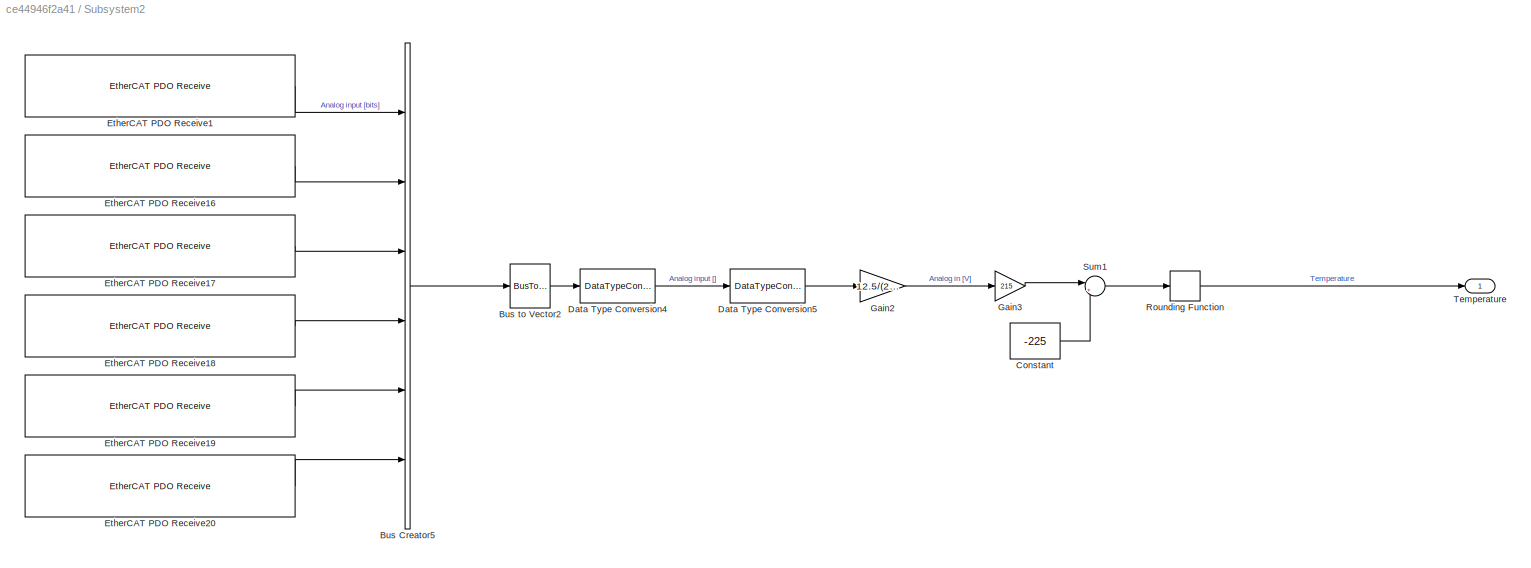
BLOCK [SubSystem] Subsystem2
  Ports = [0, 1]
  RequestExecContextInheritance = off
BLOCK [BusCreator] Subsystem2/Bus Creator5
  DisplayOption = bar
  InheritFromInputs = on
  Inputs = 6
  Ports = [6, 1]
BLOCK [BusToVector] Subsystem2/Bus to Vector2
BLOCK [Constant] Subsystem2/Constant
  Value = -225
BLOCK [DataTypeConversion] Subsystem2/Data Type Conversion4
  OutDataTypeStr = int32
  RndMeth = Floor
  SaturateOnIntegerOverflow = off
BLOCK [DataTypeConversion] Subsystem2/Data Type Conversion5
  OutDataTypeStr = double
  RndMeth = Floor
  SaturateOnIntegerOverflow = off
BLOCK [Reference] Subsystem2/EtherCAT PDO Receive1  REF=xpcethercatlib/EtherCAT PDO Receive
  Ports = [0, 1]
  Priority = 2
  SourceBlock = xpcethercatlib/EtherCAT PDO Receive
  SourceProductBaseCode = XP
  SourceProductName = Simulink Real-Time
  SourceType = xpcethercat_rx_var
BLOCK [Reference] Subsystem2/EtherCAT PDO Receive16  REF=xpcethercatlib/EtherCAT PDO Receive
  Ports = [0, 1]
  Priority = 2
  SourceBlock = xpcethercatlib/EtherCAT PDO Receive
  SourceProductBaseCode = XP
  SourceProductName = Simulink Real-Time
  SourceType = xpcethercat_rx_var
BLOCK [Reference] Subsystem2/EtherCAT PDO Receive17  REF=xpcethercatlib/EtherCAT PDO Receive
  Ports = [0, 1]
  Priority = 2
  SourceBlock = xpcethercatlib/EtherCAT PDO Receive
  SourceProductBaseCode = XP
  SourceProductName = Simulink Real-Time
  SourceType = xpcethercat_rx_var
BLOCK [Reference] Subsystem2/EtherCAT PDO Receive18  REF=xpcethercatlib/EtherCAT PDO Receive
  Ports = [0, 1]
  Priority = 2
  SourceBlock = xpcethercatlib/EtherCAT PDO Receive
  SourceProductBaseCode = XP
  SourceProductName = Simulink Real-Time
  SourceType = xpcethercat_rx_var
BLOCK [Reference] Subsystem2/EtherCAT PDO Receive19  REF=xpcethercatlib/EtherCAT PDO Receive
  Ports = [0, 1]
  Priority = 2
  SourceBlock = xpcethercatlib/EtherCAT PDO Receive
  SourceProductBaseCode = XP
  SourceProductName = Simulink Real-Time
  SourceType = xpcethercat_rx_var
BLOCK [Reference] Subsystem2/EtherCAT PDO Receive20  REF=xpcethercatlib/EtherCAT PDO Receive
  Ports = [0, 1]
  Priority = 2
  SourceBlock = xpcethercatlib/EtherCAT PDO Receive
  SourceProductBaseCode = XP
  SourceProductName = Simulink Real-Time
  SourceType = xpcethercat_rx_var
BLOCK [Gain] Subsystem2/Gain2
  Gain = 12.5/(2^15-1)
  OutDataTypeStr = Inherit: Inherit via internal rule
  ParamDataTypeStr = Inherit: Inherit via internal rule
  SaturateOnIntegerOverflow = off
BLOCK [Gain] Subsystem2/Gain3
  Gain = 215
  OutDataTypeStr = Inherit: Inherit via internal rule
  ParamDataTypeStr = Inherit: Inherit via internal rule
  SaturateOnIntegerOverflow = off
BLOCK [Rounding] Subsystem2/Rounding Function
BLOCK [Sum] Subsystem2/Sum1
  IconShape = round
  InputSameDT = off
  Inputs = |++
  OutDataTypeStr = double
  Ports = [2, 1]
  SaturateOnIntegerOverflow = off
BLOCK [Outport] Subsystem2/Temperature
  IconDisplay = Port number
BLOCK [Outport] Temperature
  IconDisplay = Port number
  Port = 5
BLOCK [Terminator] Terminator
BLOCK [Constant] Upper limit [mA]
  SampleTime = ts
  Value = 500
BLOCK [Outport] Warnings
  IconDisplay = Port number
  Port = 3
BLOCK [Inport] control word
  IconDisplay = Port number
  Port = 2
ANNOTATION (root): Angle
ANNOTATION (root): Enable Driver -> Dirver status
ANNOTATION (root): Setpoint Current -> Actual current
ANNOTATION Subsystem: Driver 1
ANNOTATION Subsystem: Driver 2
ANNOTATION Subsystem: Driver 3
ANNOTATION Subsystem: Driver 4
ANNOTATION Subsystem: Driver 5
ANNOTATION Subsystem: Driver 6
NET Analog output voltage:1 -> EtherCAT PDO Transmit 2:1, EtherCAT PDO Transmit 4:1, EtherCAT PDO Transmit 5:1, EtherCAT PDO Transmit 6:1, EtherCAT PDO Transmit 7:1, EtherCAT PDO Transmit :1
LINE Bus Creator:1 -> Bus to Vector:1
LINE Bus to Vector:1 -> Data Type Conversion:1
LINE Constant10:1 -> Mux:4
LINE Constant11:1 -> Mux:5
LINE Constant12:1 -> Mux:6
LINE Constant7:1 -> Mux:1
LINE Constant8:1 -> Mux:2
LINE Constant9:1 -> Mux:3
LINE Current [mA]:1 -> Demux2:1
LINE Data Type Conversion15:1 -> EtherCAT PDO Transmit 13:1
NET Data Type Conversion16:1 -> EtherCAT PDO Transmit 10:1, EtherCAT PDO Transmit 11:1, EtherCAT PDO Transmit 12:1, EtherCAT PDO Transmit 1:1, EtherCAT PDO Transmit 8:1, EtherCAT PDO Transmit 9:1
LINE Data Type Conversion17:1 -> EtherCAT PDO Transmit 14:1
LINE Data Type Conversion18:1 -> EtherCAT PDO Transmit 15:1
LINE Data Type Conversion19:1 -> EtherCAT PDO Transmit 16:1
LINE Data Type Conversion1:1 -> Gain2:1
LINE Data Type Conversion20:1 -> EtherCAT PDO Transmit 17:1
LINE Data Type Conversion9:1 -> EtherCAT PDO Transmit 3:1
LINE Data Type Conversion:1 -> Gain:1
LINE Demux2:1 -> Saturation Dynamic:2
LINE Demux2:2 -> Saturation Dynamic1:2
LINE Demux2:3 -> Saturation Dynamic2:2
LINE Demux2:4 -> Saturation Dynamic3:2
LINE Demux2:5 -> Saturation Dynamic4:2
LINE Demux2:6 -> Saturation Dynamic5:2
LINE EtherCAT Init :1 -> Terminator:1
LINE EtherCAT PDO Receive10:1 -> Bus Creator:6
LINE EtherCAT PDO Receive11:1 -> Mux1:2
LINE EtherCAT PDO Receive12:1 -> Mux1:3
LINE EtherCAT PDO Receive13:1 -> Mux1:4
LINE EtherCAT PDO Receive14:1 -> Mux1:5
LINE EtherCAT PDO Receive15:1 -> Mux1:6
LINE EtherCAT PDO Receive2:1 -> Mux1:1
LINE EtherCAT PDO Receive6:1 -> Bus Creator:2
LINE EtherCAT PDO Receive7:1 -> Bus Creator:3
LINE EtherCAT PDO Receive8:1 -> Bus Creator:4
LINE EtherCAT PDO Receive9:1 -> Bus Creator:5
LINE EtherCAT PDO Receive:1 -> Bus Creator:1
LINE Gain1:1 -> Angle [deg]:1
LINE Gain2:1 -> Actual current [mA]:1
LINE Gain:1 -> Gain1:1
NET Lower limit [mA]:1 -> Saturation Dynamic1:3, Saturation Dynamic2:3, Saturation Dynamic3:3, Saturation Dynamic4:3, Saturation Dynamic5:3, Saturation Dynamic:3
LINE Mux1:1 -> Data Type Conversion1:1
LINE Mux:1 -> Subsystem:1
LINE Saturation Dynamic1:1 -> Data Type Conversion15:1
LINE Saturation Dynamic2:1 -> Data Type Conversion17:1
LINE Saturation Dynamic3:1 -> Data Type Conversion18:1
LINE Saturation Dynamic4:1 -> Data Type Conversion19:1
LINE Saturation Dynamic5:1 -> Data Type Conversion20:1
LINE Saturation Dynamic:1 -> Data Type Conversion9:1
NET Subsystem/Demux:1 -> Subsystem/EtherCAT Async SDO Upload1:1, Subsystem/EtherCAT Async SDO Upload2:1, Subsystem/EtherCAT Async SDO Upload3:1, Subsystem/EtherCAT Async SDO Upload4:1, Subsystem/EtherCAT Async SDO Upload5:1, Subsystem/EtherCAT Async SDO Upload:1
NET Subsystem/Demux:2 -> Subsystem/EtherCAT Async SDO Upload10:1, Subsystem/EtherCAT Async SDO Upload11:1, Subsystem/EtherCAT Async SDO Upload6:1, Subsystem/EtherCAT Async SDO Upload7:1, Subsystem/EtherCAT Async SDO Upload8:1, Subsystem/EtherCAT Async SDO Upload9:1
NET Subsystem/Demux:3 -> Subsystem/EtherCAT Async SDO Upload12:1, Subsystem/EtherCAT Async SDO Upload13:1, Subsystem/EtherCAT Async SDO Upload14:1, Subsystem/EtherCAT Async SDO Upload15:1, Subsystem/EtherCAT Async SDO Upload16:1, Subsystem/EtherCAT Async SDO Upload17:1
NET Subsystem/Demux:4 -> Subsystem/EtherCAT Async SDO Upload18:1, Subsystem/EtherCAT Async SDO Upload19:1, Subsystem/EtherCAT Async SDO Upload20:1, Subsystem/EtherCAT Async SDO Upload21:1, Subsystem/EtherCAT Async SDO Upload22:1, Subsystem/EtherCAT Async SDO Upload23:1
NET Subsystem/Demux:5 -> Subsystem/EtherCAT Async SDO Upload24:1, Subsystem/EtherCAT Async SDO Upload25:1, Subsystem/EtherCAT Async SDO Upload26:1, Subsystem/EtherCAT Async SDO Upload27:1, Subsystem/EtherCAT Async SDO Upload28:1, Subsystem/EtherCAT Async SDO Upload29:1
NET Subsystem/Demux:6 -> Subsystem/EtherCAT Async SDO Upload30:1, Subsystem/EtherCAT Async SDO Upload31:1, Subsystem/EtherCAT Async SDO Upload32:1, Subsystem/EtherCAT Async SDO Upload33:1, Subsystem/EtherCAT Async SDO Upload34:1, Subsystem/EtherCAT Async SDO Upload35:1
LINE Subsystem/Enable:1 -> Subsystem/Demux:1
LINE Subsystem/EtherCAT Async SDO Upload10:1 -> Subsystem/Mux3:2
LINE Subsystem/EtherCAT Async SDO Upload10:2 -> Subsystem/Terminator12:1
LINE Subsystem/EtherCAT Async SDO Upload11:1 -> Subsystem/Mux3:3
LINE Subsystem/EtherCAT Async SDO Upload11:2 -> Subsystem/Terminator13:1
LINE Subsystem/EtherCAT Async SDO Upload12:1 -> Subsystem/Mux4:1
LINE Subsystem/EtherCAT Async SDO Upload12:2 -> Subsystem/Terminator14:1
LINE Subsystem/EtherCAT Async SDO Upload13:1 -> Subsystem/Mux4:2
LINE Subsystem/EtherCAT Async SDO Upload13:2 -> Subsystem/Terminator15:1
LINE Subsystem/EtherCAT Async SDO Upload14:1 -> Subsystem/Mux4:3
LINE Subsystem/EtherCAT Async SDO Upload14:2 -> Subsystem/Terminator16:1
LINE Subsystem/EtherCAT Async SDO Upload15:1 -> Subsystem/Mux5:1
LINE Subsystem/EtherCAT Async SDO Upload15:2 -> Subsystem/Terminator17:1
LINE Subsystem/EtherCAT Async SDO Upload16:1 -> Subsystem/Mux5:2
LINE Subsystem/EtherCAT Async SDO Upload16:2 -> Subsystem/Terminator18:1
LINE Subsystem/EtherCAT Async SDO Upload17:1 -> Subsystem/Mux5:3
LINE Subsystem/EtherCAT Async SDO Upload17:2 -> Subsystem/Terminator19:1
LINE Subsystem/EtherCAT Async SDO Upload18:1 -> Subsystem/Mux6:1
LINE Subsystem/EtherCAT Async SDO Upload18:2 -> Subsystem/Terminator20:1
LINE Subsystem/EtherCAT Async SDO Upload19:1 -> Subsystem/Mux6:2
LINE Subsystem/EtherCAT Async SDO Upload19:2 -> Subsystem/Terminator21:1
LINE Subsystem/EtherCAT Async SDO Upload1:1 -> Subsystem/Mux:2
LINE Subsystem/EtherCAT Async SDO Upload1:2 -> Subsystem/Terminator3:1
LINE Subsystem/EtherCAT Async SDO Upload20:1 -> Subsystem/Mux6:3
LINE Subsystem/EtherCAT Async SDO Upload20:2 -> Subsystem/Terminator22:1
LINE Subsystem/EtherCAT Async SDO Upload21:1 -> Subsystem/Mux7:1
LINE Subsystem/EtherCAT Async SDO Upload21:2 -> Subsystem/Terminator23:1
LINE Subsystem/EtherCAT Async SDO Upload22:1 -> Subsystem/Mux7:2
LINE Subsystem/EtherCAT Async SDO Upload22:2 -> Subsystem/Terminator24:1
LINE Subsystem/EtherCAT Async SDO Upload23:1 -> Subsystem/Mux7:3
LINE Subsystem/EtherCAT Async SDO Upload23:2 -> Subsystem/Terminator25:1
LINE Subsystem/EtherCAT Async SDO Upload24:1 -> Subsystem/Mux8:1
LINE Subsystem/EtherCAT Async SDO Upload24:2 -> Subsystem/Terminator26:1
LINE Subsystem/EtherCAT Async SDO Upload25:1 -> Subsystem/Mux8:2
LINE Subsystem/EtherCAT Async SDO Upload25:2 -> Subsystem/Terminator27:1
LINE Subsystem/EtherCAT Async SDO Upload26:1 -> Subsystem/Mux8:3
LINE Subsystem/EtherCAT Async SDO Upload26:2 -> Subsystem/Terminator28:1
LINE Subsystem/EtherCAT Async SDO Upload27:1 -> Subsystem/Mux9:1
LINE Subsystem/EtherCAT Async SDO Upload27:2 -> Subsystem/Terminator29:1
LINE Subsystem/EtherCAT Async SDO Upload28:1 -> Subsystem/Mux9:2
LINE Subsystem/EtherCAT Async SDO Upload28:2 -> Subsystem/Terminator30:1
LINE Subsystem/EtherCAT Async SDO Upload29:1 -> Subsystem/Mux9:3
LINE Subsystem/EtherCAT Async SDO Upload29:2 -> Subsystem/Terminator31:1
LINE Subsystem/EtherCAT Async SDO Upload2:1 -> Subsystem/Mux:3
LINE Subsystem/EtherCAT Async SDO Upload2:2 -> Subsystem/Terminator4:1
LINE Subsystem/EtherCAT Async SDO Upload30:1 -> Subsystem/Mux10:1
LINE Subsystem/EtherCAT Async SDO Upload30:2 -> Subsystem/Terminator32:1
LINE Subsystem/EtherCAT Async SDO Upload31:1 -> Subsystem/Mux10:2
LINE Subsystem/EtherCAT Async SDO Upload31:2 -> Subsystem/Terminator33:1
LINE Subsystem/EtherCAT Async SDO Upload32:1 -> Subsystem/Mux10:3
LINE Subsystem/EtherCAT Async SDO Upload32:2 -> Subsystem/Terminator34:1
LINE Subsystem/EtherCAT Async SDO Upload33:1 -> Subsystem/Mux11:1
LINE Subsystem/EtherCAT Async SDO Upload33:2 -> Subsystem/Terminator35:1
LINE Subsystem/EtherCAT Async SDO Upload34:1 -> Subsystem/Mux11:2
LINE Subsystem/EtherCAT Async SDO Upload34:2 -> Subsystem/Terminator36:1
LINE Subsystem/EtherCAT Async SDO Upload35:1 -> Subsystem/Mux11:3
LINE Subsystem/EtherCAT Async SDO Upload35:2 -> Subsystem/Terminator37:1
LINE Subsystem/EtherCAT Async SDO Upload3:1 -> Subsystem/Mux2:1
LINE Subsystem/EtherCAT Async SDO Upload3:2 -> Subsystem/Terminator5:1
LINE Subsystem/EtherCAT Async SDO Upload4:1 -> Subsystem/Mux2:2
LINE Subsystem/EtherCAT Async SDO Upload4:2 -> Subsystem/Terminator6:1
LINE Subsystem/EtherCAT Async SDO Upload5:1 -> Subsystem/Mux2:3
LINE Subsystem/EtherCAT Async SDO Upload5:2 -> Subsystem/Terminator7:1
LINE Subsystem/EtherCAT Async SDO Upload6:1 -> Subsystem/Mux1:1
LINE Subsystem/EtherCAT Async SDO Upload6:2 -> Subsystem/Terminator8:1
LINE Subsystem/EtherCAT Async SDO Upload7:1 -> Subsystem/Mux1:2
LINE Subsystem/EtherCAT Async SDO Upload7:2 -> Subsystem/Terminator9:1
LINE Subsystem/EtherCAT Async SDO Upload8:1 -> Subsystem/Mux1:3
LINE Subsystem/EtherCAT Async SDO Upload8:2 -> Subsystem/Terminator10:1
LINE Subsystem/EtherCAT Async SDO Upload9:1 -> Subsystem/Mux3:1
LINE Subsystem/EtherCAT Async SDO Upload9:2 -> Subsystem/Terminator11:1
LINE Subsystem/EtherCAT Async SDO Upload:1 -> Subsystem/Mux:1
LINE Subsystem/EtherCAT Async SDO Upload:2 -> Subsystem/Terminator2:1
LINE Subsystem/Mux10:1 -> Subsystem/Mux13:6
LINE Subsystem/Mux11:1 -> Subsystem/Mux12:6
LINE Subsystem/Mux12:1 -> Subsystem/Errors:1
LINE Subsystem/Mux13:1 -> Subsystem/Warnings:1
LINE Subsystem/Mux1:1 -> Subsystem/Mux13:2
LINE Subsystem/Mux2:1 -> Subsystem/Mux12:1
LINE Subsystem/Mux3:1 -> Subsystem/Mux12:2
LINE Subsystem/Mux4:1 -> Subsystem/Mux13:3
LINE Subsystem/Mux5:1 -> Subsystem/Mux12:3
LINE Subsystem/Mux6:1 -> Subsystem/Mux13:4
LINE Subsystem/Mux7:1 -> Subsystem/Mux12:4
LINE Subsystem/Mux8:1 -> Subsystem/Mux13:5
LINE Subsystem/Mux9:1 -> Subsystem/Mux12:5
LINE Subsystem/Mux:1 -> Subsystem/Mux13:1
LINE Subsystem1/Data Type Conversion11:1 -> Subsystem1/Goto18:1
LINE Subsystem1/Data Type Conversion12:1 -> Subsystem1/Goto12:1
LINE Subsystem1/Data Type Conversion13:1 -> Subsystem1/Goto6:1
LINE Subsystem1/Data Type Conversion14:1 -> Subsystem1/Goto:1
LINE Subsystem1/Data Type Conversion22:1 -> Subsystem1/Goto19:1
LINE Subsystem1/Data Type Conversion23:1 -> Subsystem1/Goto13:1
LINE Subsystem1/Data Type Conversion24:1 -> Subsystem1/Goto7:1
LINE Subsystem1/Data Type Conversion25:1 -> Subsystem1/Goto1:1
LINE Subsystem1/Data Type Conversion26:1 -> Subsystem1/Goto37:1
LINE Subsystem1/Data Type Conversion28:1 -> Subsystem1/Goto25:1
NET Subsystem1/Data Type Conversion29:1 -> Subsystem1/Extract Bits10:1, Subsystem1/Extract Bits11:1, Subsystem1/Extract Bits12:1, Subsystem1/Extract Bits13:1, Subsystem1/Extract Bits14:1, Subsystem1/Extract Bits15:1
LINE Subsystem1/Data Type Conversion2:1 -> Subsystem1/Goto36:1
LINE Subsystem1/Data Type Conversion30:1 -> Subsystem1/Goto31:1
LINE Subsystem1/Data Type Conversion32:1 -> Subsystem1/Goto20:1
LINE Subsystem1/Data Type Conversion33:1 -> Subsystem1/Goto14:1
LINE Subsystem1/Data Type Conversion34:1 -> Subsystem1/Goto8:1
LINE Subsystem1/Data Type Conversion35:1 -> Subsystem1/Goto2:1
LINE Subsystem1/Data Type Conversion36:1 -> Subsystem1/Goto38:1
LINE Subsystem1/Data Type Conversion38:1 -> Subsystem1/Goto26:1
NET Subsystem1/Data Type Conversion39:1 -> Subsystem1/Extract Bits19:1, Subsystem1/Extract Bits20:1, Subsystem1/Extract Bits21:1, Subsystem1/Extract Bits22:1, Subsystem1/Extract Bits23:1, Subsystem1/Extract Bits24:1
LINE Subsystem1/Data Type Conversion40:1 -> Subsystem1/Goto32:1
LINE Subsystem1/Data Type Conversion42:1 -> Subsystem1/Goto21:1
LINE Subsystem1/Data Type Conversion43:1 -> Subsystem1/Goto15:1
LINE Subsystem1/Data Type Conversion44:1 -> Subsystem1/Goto9:1
LINE Subsystem1/Data Type Conversion45:1 -> Subsystem1/Goto3:1
LINE Subsystem1/Data Type Conversion46:1 -> Subsystem1/Goto39:1
LINE Subsystem1/Data Type Conversion48:1 -> Subsystem1/Goto27:1
NET Subsystem1/Data Type Conversion49:1 -> Subsystem1/Extract Bits28:1, Subsystem1/Extract Bits29:1, Subsystem1/Extract Bits30:1, Subsystem1/Extract Bits31:1, Subsystem1/Extract Bits32:1, Subsystem1/Extract Bits33:1
LINE Subsystem1/Data Type Conversion50:1 -> Subsystem1/Goto33:1
LINE Subsystem1/Data Type Conversion52:1 -> Subsystem1/Goto22:1
LINE Subsystem1/Data Type Conversion53:1 -> Subsystem1/Goto16:1
LINE Subsystem1/Data Type Conversion54:1 -> Subsystem1/Goto10:1
LINE Subsystem1/Data Type Conversion55:1 -> Subsystem1/Goto4:1
LINE Subsystem1/Data Type Conversion56:1 -> Subsystem1/Goto40:1
LINE Subsystem1/Data Type Conversion58:1 -> Subsystem1/Goto28:1
NET Subsystem1/Data Type Conversion59:1 -> Subsystem1/Extract Bits37:1, Subsystem1/Extract Bits38:1, Subsystem1/Extract Bits39:1, Subsystem1/Extract Bits40:1, Subsystem1/Extract Bits41:1, Subsystem1/Extract Bits42:1
LINE Subsystem1/Data Type Conversion60:1 -> Subsystem1/Goto34:1
LINE Subsystem1/Data Type Conversion62:1 -> Subsystem1/Goto23:1
LINE Subsystem1/Data Type Conversion63:1 -> Subsystem1/Goto17:1
LINE Subsystem1/Data Type Conversion64:1 -> Subsystem1/Goto11:1
LINE Subsystem1/Data Type Conversion65:1 -> Subsystem1/Goto5:1
LINE Subsystem1/Data Type Conversion66:1 -> Subsystem1/Goto41:1
LINE Subsystem1/Data Type Conversion68:1 -> Subsystem1/Goto29:1
NET Subsystem1/Data Type Conversion69:1 -> Subsystem1/Extract Bits46:1, Subsystem1/Extract Bits47:1, Subsystem1/Extract Bits48:1, Subsystem1/Extract Bits49:1, Subsystem1/Extract Bits50:1, Subsystem1/Extract Bits51:1
LINE Subsystem1/Data Type Conversion6:1 -> Subsystem1/Goto24:1
LINE Subsystem1/Data Type Conversion70:1 -> Subsystem1/Goto35:1
NET Subsystem1/Data Type Conversion7:1 -> Subsystem1/Extract Bits1:1, Subsystem1/Extract Bits2:1, Subsystem1/Extract Bits3:1, Subsystem1/Extract Bits4:1, Subsystem1/Extract Bits5:1, Subsystem1/Extract Bits6:1
LINE Subsystem1/Data Type Conversion8:1 -> Subsystem1/Goto30:1
LINE Subsystem1/EtherCAT PDO Receive21:1 -> Subsystem1/Extract Bits9:1
LINE Subsystem1/EtherCAT PDO Receive22:1 -> Subsystem1/Data Type Conversion29:1
NET Subsystem1/EtherCAT PDO Receive23:1 -> Subsystem1/Extract Bits16:1, Subsystem1/Extract Bits17:1
LINE Subsystem1/EtherCAT PDO Receive24:1 -> Subsystem1/Extract Bits18:1
LINE Subsystem1/EtherCAT PDO Receive25:1 -> Subsystem1/Data Type Conversion39:1
NET Subsystem1/EtherCAT PDO Receive26:1 -> Subsystem1/Extract Bits25:1, Subsystem1/Extract Bits26:1
LINE Subsystem1/EtherCAT PDO Receive27:1 -> Subsystem1/Extract Bits27:1
LINE Subsystem1/EtherCAT PDO Receive28:1 -> Subsystem1/Data Type Conversion49:1
NET Subsystem1/EtherCAT PDO Receive29:1 -> Subsystem1/Extract Bits34:1, Subsystem1/Extract Bits35:1
LINE Subsystem1/EtherCAT PDO Receive30:1 -> Subsystem1/Extract Bits36:1
LINE Subsystem1/EtherCAT PDO Receive31:1 -> Subsystem1/Data Type Conversion59:1
NET Subsystem1/EtherCAT PDO Receive32:1 -> Subsystem1/Extract Bits43:1, Subsystem1/Extract Bits44:1
LINE Subsystem1/EtherCAT PDO Receive33:1 -> Subsystem1/Extract Bits45:1
LINE Subsystem1/EtherCAT PDO Receive34:1 -> Subsystem1/Data Type Conversion69:1
NET Subsystem1/EtherCAT PDO Receive35:1 -> Subsystem1/Extract Bits52:1, Subsystem1/Extract Bits53:1
LINE Subsystem1/EtherCAT PDO Receive3:1 -> Subsystem1/Extract Bits:1
LINE Subsystem1/EtherCAT PDO Receive4:1 -> Subsystem1/Data Type Conversion7:1
NET Subsystem1/EtherCAT PDO Receive5:1 -> Subsystem1/Extract Bits7:1, Subsystem1/Extract Bits8:1
LINE Subsystem1/Extract Bits10:1 -> Subsystem1/Data Type Conversion25:1
LINE Subsystem1/Extract Bits11:1 -> Subsystem1/Data Type Conversion24:1
LINE Subsystem1/Extract Bits12:1 -> Subsystem1/Data Type Conversion23:1
LINE Subsystem1/Extract Bits13:1 -> Subsystem1/Data Type Conversion22:1
LINE Subsystem1/Extract Bits14:1 -> Subsystem1/Data Type Conversion21:1
LINE Subsystem1/Extract Bits15:1 -> Subsystem1/Data Type Conversion28:1
LINE Subsystem1/Extract Bits16:1 -> Subsystem1/Data Type Conversion26:1
LINE Subsystem1/Extract Bits17:1 -> Subsystem1/Data Type Conversion27:1
LINE Subsystem1/Extract Bits18:1 -> Subsystem1/Data Type Conversion40:1
LINE Subsystem1/Extract Bits19:1 -> Subsystem1/Data Type Conversion35:1
LINE Subsystem1/Extract Bits1:1 -> Subsystem1/Data Type Conversion14:1
LINE Subsystem1/Extract Bits20:1 -> Subsystem1/Data Type Conversion34:1
LINE Subsystem1/Extract Bits21:1 -> Subsystem1/Data Type Conversion33:1
LINE Subsystem1/Extract Bits22:1 -> Subsystem1/Data Type Conversion32:1
LINE Subsystem1/Extract Bits23:1 -> Subsystem1/Data Type Conversion31:1
LINE Subsystem1/Extract Bits24:1 -> Subsystem1/Data Type Conversion38:1
LINE Subsystem1/Extract Bits25:1 -> Subsystem1/Data Type Conversion36:1
LINE Subsystem1/Extract Bits26:1 -> Subsystem1/Data Type Conversion37:1
LINE Subsystem1/Extract Bits27:1 -> Subsystem1/Data Type Conversion50:1
LINE Subsystem1/Extract Bits28:1 -> Subsystem1/Data Type Conversion45:1
LINE Subsystem1/Extract Bits29:1 -> Subsystem1/Data Type Conversion44:1
LINE Subsystem1/Extract Bits2:1 -> Subsystem1/Data Type Conversion13:1
LINE Subsystem1/Extract Bits30:1 -> Subsystem1/Data Type Conversion43:1
LINE Subsystem1/Extract Bits31:1 -> Subsystem1/Data Type Conversion42:1
LINE Subsystem1/Extract Bits32:1 -> Subsystem1/Data Type Conversion41:1
LINE Subsystem1/Extract Bits33:1 -> Subsystem1/Data Type Conversion48:1
LINE Subsystem1/Extract Bits34:1 -> Subsystem1/Data Type Conversion46:1
LINE Subsystem1/Extract Bits35:1 -> Subsystem1/Data Type Conversion47:1
LINE Subsystem1/Extract Bits36:1 -> Subsystem1/Data Type Conversion60:1
LINE Subsystem1/Extract Bits37:1 -> Subsystem1/Data Type Conversion55:1
LINE Subsystem1/Extract Bits38:1 -> Subsystem1/Data Type Conversion54:1
LINE Subsystem1/Extract Bits39:1 -> Subsystem1/Data Type Conversion53:1
LINE Subsystem1/Extract Bits3:1 -> Subsystem1/Data Type Conversion12:1
LINE Subsystem1/Extract Bits40:1 -> Subsystem1/Data Type Conversion52:1
LINE Subsystem1/Extract Bits41:1 -> Subsystem1/Data Type Conversion51:1
LINE Subsystem1/Extract Bits42:1 -> Subsystem1/Data Type Conversion58:1
LINE Subsystem1/Extract Bits43:1 -> Subsystem1/Data Type Conversion56:1
LINE Subsystem1/Extract Bits44:1 -> Subsystem1/Data Type Conversion57:1
LINE Subsystem1/Extract Bits45:1 -> Subsystem1/Data Type Conversion70:1
LINE Subsystem1/Extract Bits46:1 -> Subsystem1/Data Type Conversion65:1
LINE Subsystem1/Extract Bits47:1 -> Subsystem1/Data Type Conversion64:1
LINE Subsystem1/Extract Bits48:1 -> Subsystem1/Data Type Conversion63:1
LINE Subsystem1/Extract Bits49:1 -> Subsystem1/Data Type Conversion62:1
LINE Subsystem1/Extract Bits4:1 -> Subsystem1/Data Type Conversion11:1
LINE Subsystem1/Extract Bits50:1 -> Subsystem1/Data Type Conversion61:1
LINE Subsystem1/Extract Bits51:1 -> Subsystem1/Data Type Conversion68:1
LINE Subsystem1/Extract Bits52:1 -> Subsystem1/Data Type Conversion66:1
LINE Subsystem1/Extract Bits53:1 -> Subsystem1/Data Type Conversion67:1
LINE Subsystem1/Extract Bits5:1 -> Subsystem1/Data Type Conversion10:1
LINE Subsystem1/Extract Bits6:1 -> Subsystem1/Data Type Conversion6:1
LINE Subsystem1/Extract Bits7:1 -> Subsystem1/Data Type Conversion2:1
LINE Subsystem1/Extract Bits8:1 -> Subsystem1/Data Type Conversion3:1
LINE Subsystem1/Extract Bits9:1 -> Subsystem1/Data Type Conversion30:1
LINE Subsystem1/Extract Bits:1 -> Subsystem1/Data Type Conversion8:1
LINE Subsystem1/From10:1 -> Subsystem1/Mux1:5
LINE Subsystem1/From11:1 -> Subsystem1/Mux1:6
LINE Subsystem1/From12:1 -> Subsystem1/Mux2:1
LINE Subsystem1/From13:1 -> Subsystem1/Mux2:2
LINE Subsystem1/From14:1 -> Subsystem1/Mux2:3
LINE Subsystem1/From15:1 -> Subsystem1/Mux2:4
LINE Subsystem1/From16:1 -> Subsystem1/Mux2:5
LINE Subsystem1/From17:1 -> Subsystem1/Mux2:6
LINE Subsystem1/From18:1 -> Subsystem1/Mux3:1
LINE Subsystem1/From19:1 -> Subsystem1/Mux3:2
LINE Subsystem1/From1:1 -> Subsystem1/Mux:2
LINE Subsystem1/From20:1 -> Subsystem1/Mux3:3
LINE Subsystem1/From21:1 -> Subsystem1/Mux3:4
LINE Subsystem1/From22:1 -> Subsystem1/Mux3:5
LINE Subsystem1/From23:1 -> Subsystem1/Mux3:6
LINE Subsystem1/From24:1 -> Subsystem1/Mux6:1
LINE Subsystem1/From25:1 -> Subsystem1/Mux6:2
LINE Subsystem1/From26:1 -> Subsystem1/Mux6:3
LINE Subsystem1/From27:1 -> Subsystem1/Mux6:4
LINE Subsystem1/From28:1 -> Subsystem1/Mux6:5
LINE Subsystem1/From29:1 -> Subsystem1/Mux6:6
LINE Subsystem1/From2:1 -> Subsystem1/Mux:3
LINE Subsystem1/From30:1 -> Subsystem1/Mux4:1
LINE Subsystem1/From31:1 -> Subsystem1/Mux4:2
LINE Subsystem1/From32:1 -> Subsystem1/Mux4:3
LINE Subsystem1/From33:1 -> Subsystem1/Mux4:4
LINE Subsystem1/From34:1 -> Subsystem1/Mux4:5
LINE Subsystem1/From35:1 -> Subsystem1/Mux4:6
LINE Subsystem1/From36:1 -> Subsystem1/Mux5:1
LINE Subsystem1/From37:1 -> Subsystem1/Mux5:2
LINE Subsystem1/From38:1 -> Subsystem1/Mux5:3
LINE Subsystem1/From39:1 -> Subsystem1/Mux5:4
LINE Subsystem1/From3:1 -> Subsystem1/Mux:4
LINE Subsystem1/From40:1 -> Subsystem1/Mux5:5
LINE Subsystem1/From41:1 -> Subsystem1/Mux5:6
LINE Subsystem1/From4:1 -> Subsystem1/Mux:5
LINE Subsystem1/From5:1 -> Subsystem1/Mux:6
LINE Subsystem1/From6:1 -> Subsystem1/Mux1:1
LINE Subsystem1/From7:1 -> Subsystem1/Mux1:2
LINE Subsystem1/From8:1 -> Subsystem1/Mux1:3
LINE Subsystem1/From9:1 -> Subsystem1/Mux1:4
LINE Subsystem1/From:1 -> Subsystem1/Mux:1
LINE Subsystem1/Mux1:1 -> Subsystem1/Mux7:2
LINE Subsystem1/Mux2:1 -> Subsystem1/Mux7:3
LINE Subsystem1/Mux3:1 -> Subsystem1/Mux7:4
LINE Subsystem1/Mux4:1 -> Subsystem1/Mux7:5
LINE Subsystem1/Mux5:1 -> Subsystem1/Mux7:6
LINE Subsystem1/Mux6:1 -> Subsystem1/Terminator1:1
LINE Subsystem1/Mux7:1 -> Subsystem1/Status:1
LINE Subsystem1/Mux:1 -> Subsystem1/Mux7:1
LINE Subsystem1:1 -> Status:1
LINE Subsystem2/Bus Creator5:1 -> Subsystem2/Bus to Vector2:1
LINE Subsystem2/Bus to Vector2:1 -> Subsystem2/Data Type Conversion4:1
LINE Subsystem2/Constant:1 -> Subsystem2/Sum1:2
LINE Subsystem2/Data Type Conversion4:1 -> Subsystem2/Data Type Conversion5:1
LINE Subsystem2/Data Type Conversion5:1 -> Subsystem2/Gain2:1
LINE Subsystem2/EtherCAT PDO Receive16:1 -> Subsystem2/Bus Creator5:2
LINE Subsystem2/EtherCAT PDO Receive17:1 -> Subsystem2/Bus Creator5:3
LINE Subsystem2/EtherCAT PDO Receive18:1 -> Subsystem2/Bus Creator5:4
LINE Subsystem2/EtherCAT PDO Receive19:1 -> Subsystem2/Bus Creator5:5
LINE Subsystem2/EtherCAT PDO Receive1:1 -> Subsystem2/Bus Creator5:1
LINE Subsystem2/EtherCAT PDO Receive20:1 -> Subsystem2/Bus Creator5:6
LINE Subsystem2/Gain2:1 -> Subsystem2/Gain3:1
LINE Subsystem2/Gain3:1 -> Subsystem2/Sum1:1
LINE Subsystem2/Rounding Function:1 -> Subsystem2/Temperature:1
LINE Subsystem2/Sum1:1 -> Subsystem2/Rounding Function:1
LINE Subsystem2:1 -> Temperature:1
LINE Subsystem:1 -> Warnings:1
LINE Subsystem:2 -> Errors:1
NET Upper limit [mA]:1 -> Saturation Dynamic1:1, Saturation Dynamic2:1, Saturation Dynamic3:1, Saturation Dynamic4:1, Saturation Dynamic5:1, Saturation Dynamic:1
LINE control word:1 -> Data Type Conversion16:1
note: NET lines group one-source signal fan-out (src -> all destinations, sorted); 1:1 wires keep LINE
